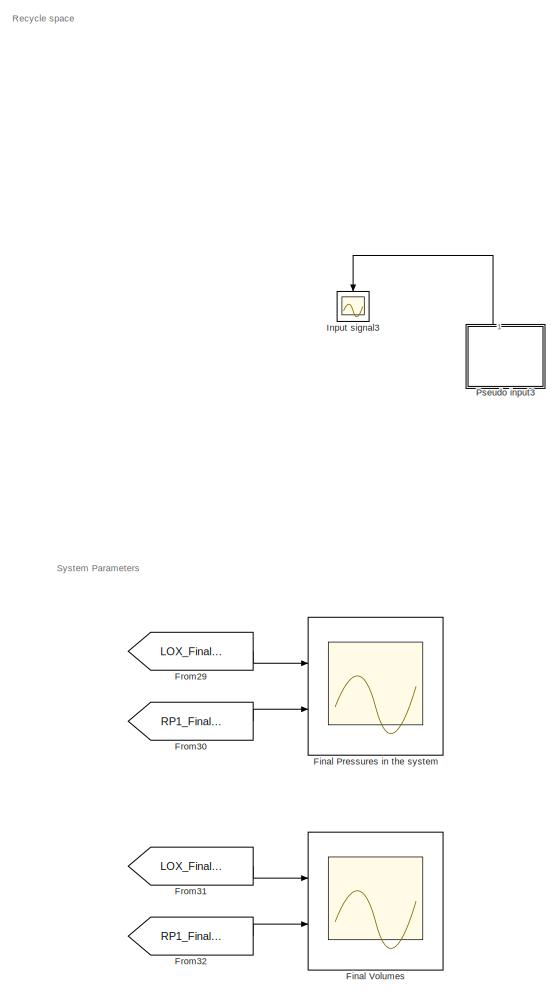
[diagram: root canvas - part 1/7, top right region]
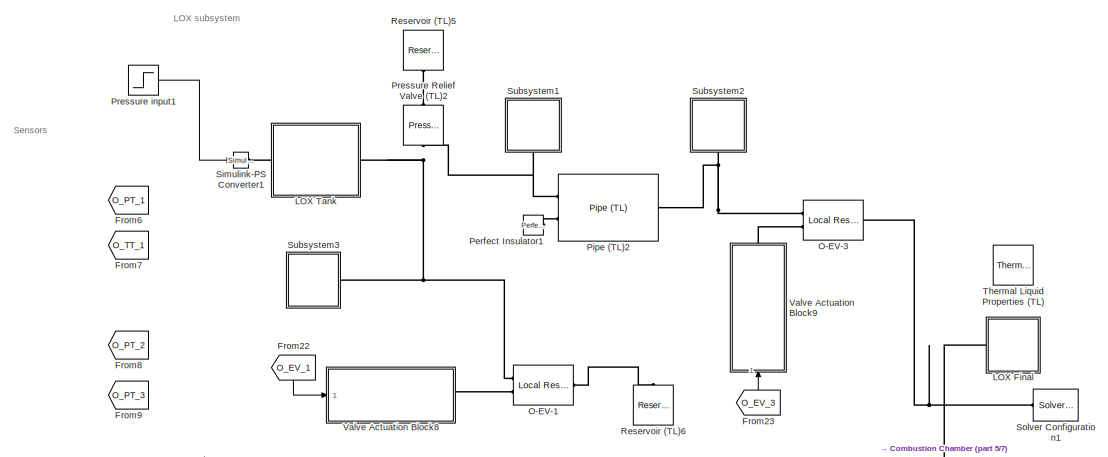
[diagram: root canvas - part 2/7, top right region]
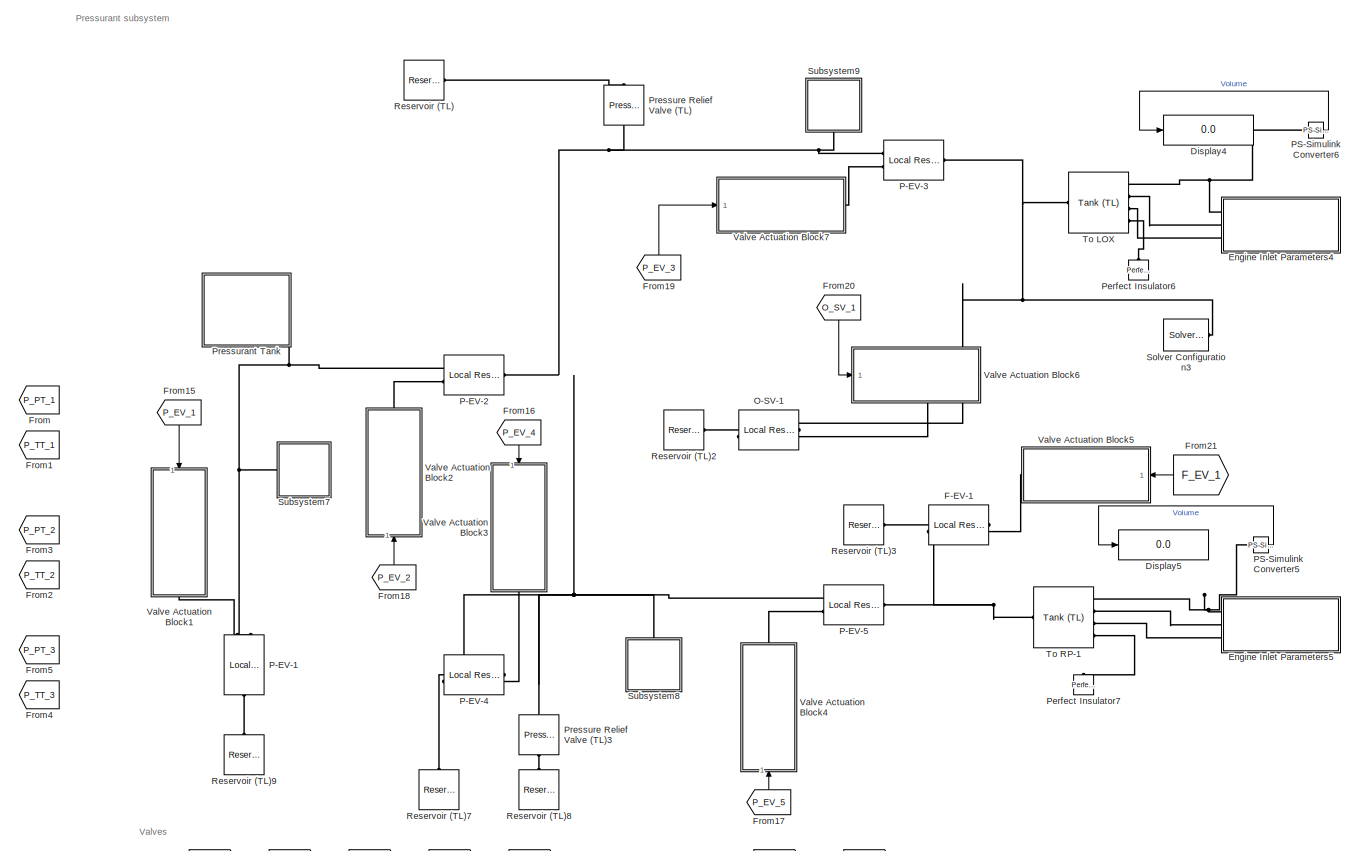
[diagram: root canvas - part 3/7, central region]
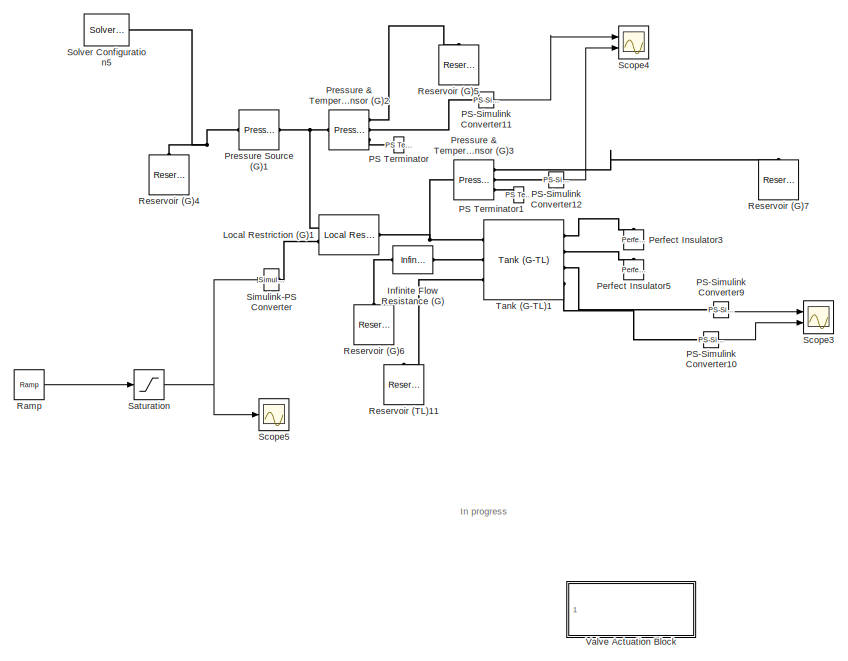
[diagram: root canvas - part 4/7, middle left region]
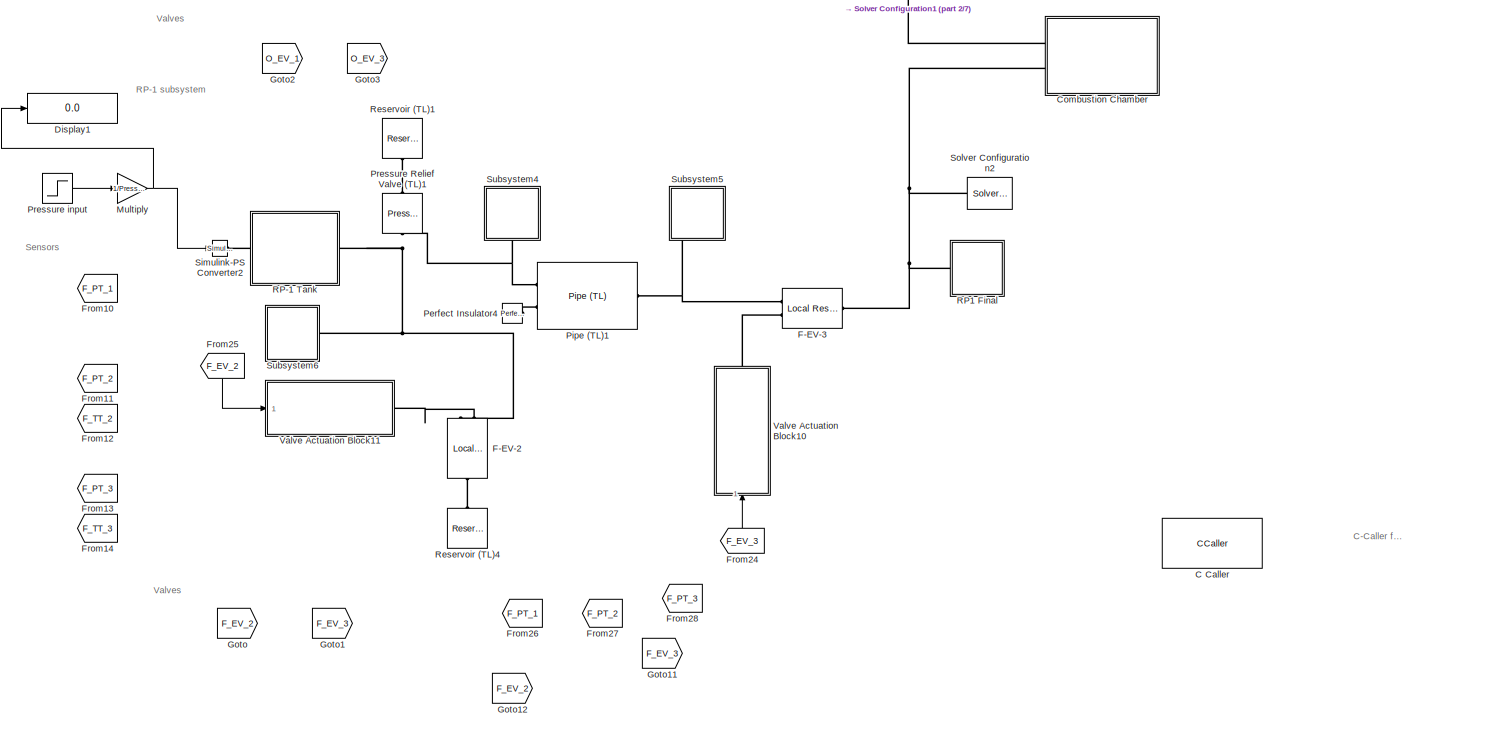
[diagram: root canvas - part 5/7, middle right region]
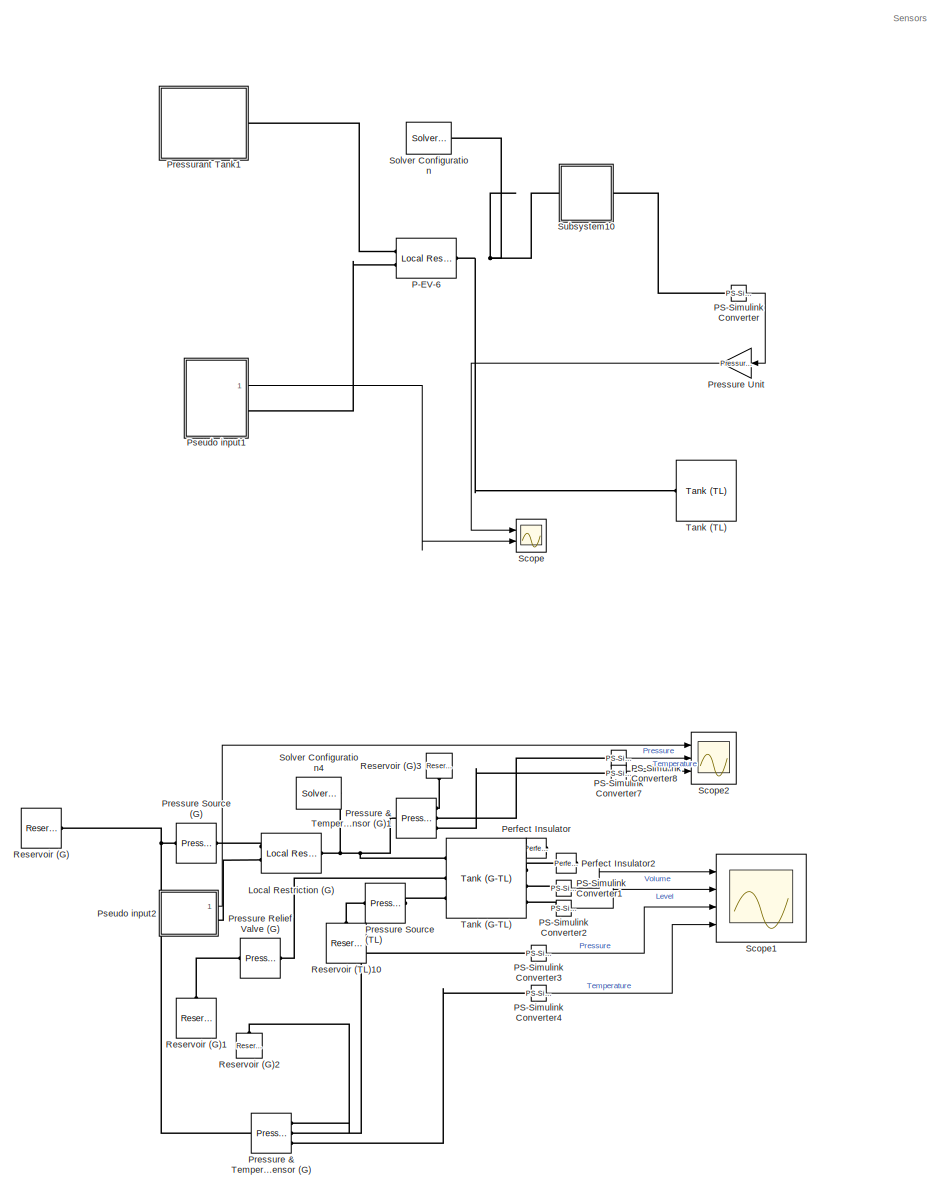
[diagram: root canvas - part 6/7, bottom left region]
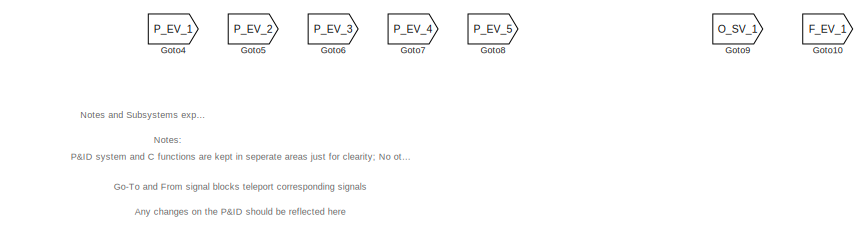
[diagram: root canvas - part 7/7, bottom center region]
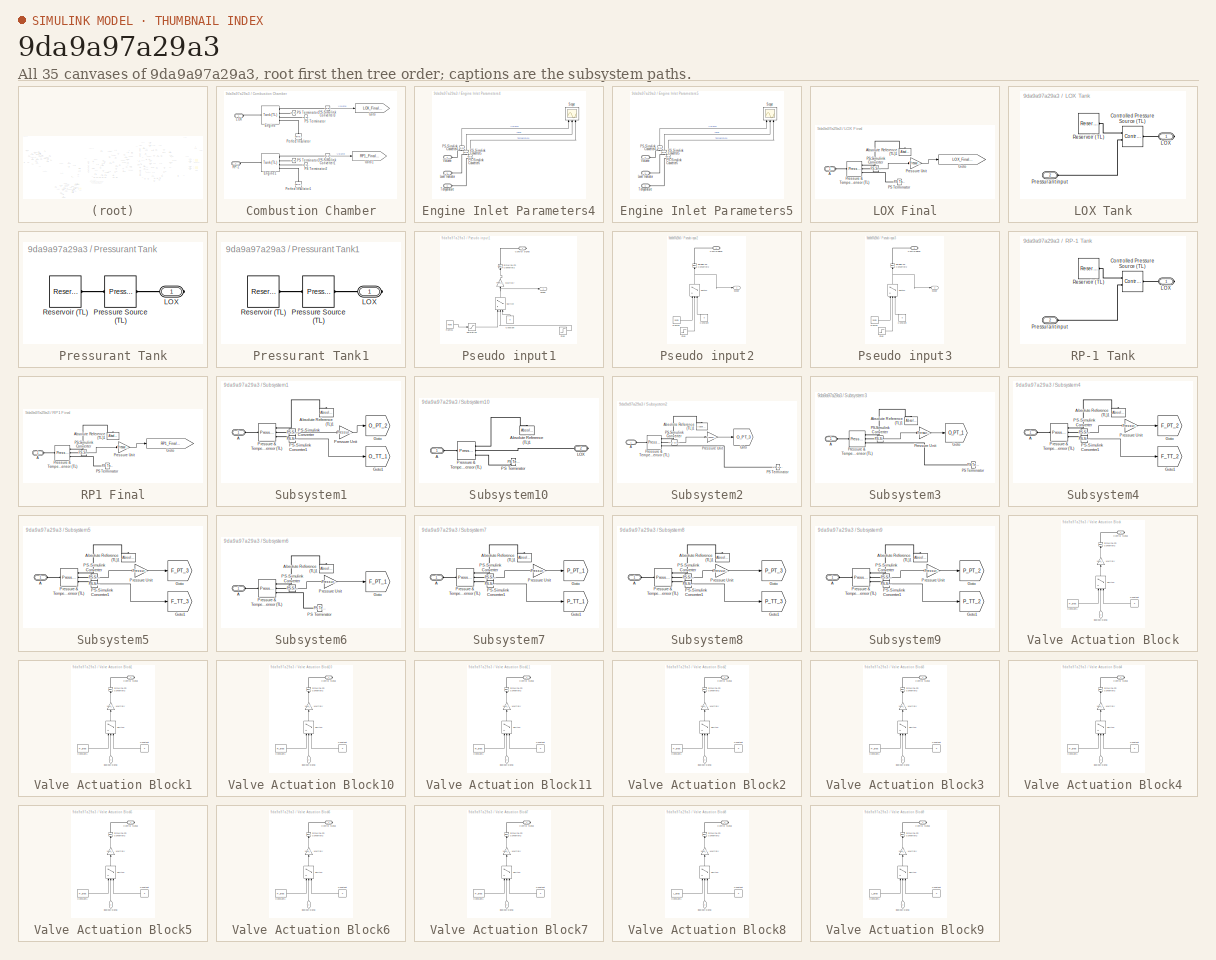
[diagram: thumbnail index - all 35 canvases of the model, root first then tree order]
MODEL slx_9da9a97a29a3
KIND model
CONFIG AbsTol = auto
CONFIG EnableMultiTasking = off
CONFIG FixedStep = auto
CONFIG MaxStep = auto
CONFIG MinStep = auto
CONFIG RelTol = 1e-3
CONFIG SampleTimeConstraint = Unconstrained
CONFIG Solver = VariableStepAuto
CONFIG SolverName = VariableStepAuto
CONFIG StartTime = 0.0
CONFIG StopTime = 50
BLOCK [CCaller] C Caller
  Commented = on
  FunctionName = init
  PortSpecificationStruct = %)30     .    , (   8    (     @         %    "     $    !     0         %  0 "0    $    _    07)G3F%M90  4&]R=$YA;64 4V-O<&4     26YD97@     5'EP90      4VEZ90      27-';&]B86P   X   !     !@    @    $          4    (     0    D    !         !     )    9FEL95]N86UE          X   !     !@    @    $          4    (     0    D    !         !     )    9FEL95]N86UE          X    X    !@    @    $      ...<+360ch>
  Ports = [0, 1]
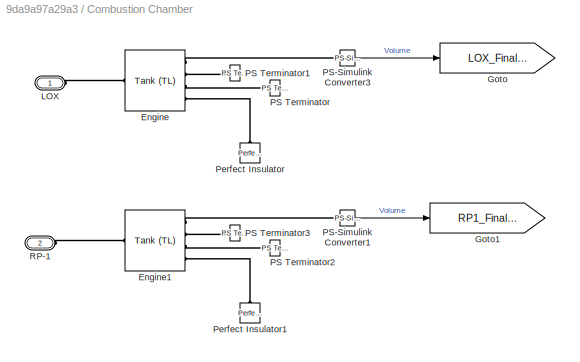
BLOCK [SubSystem] Combustion Chamber
  Commented = on
  Ports = [0, 0, 0, 0, 0, 2]
  RequestExecContextInheritance = off
BLOCK [Reference] Combustion Chamber/Engine  REF=SimscapeFluids_lib/Thermal Liquid/Tanks & Accumulators/Tank (TL)
  Ports = [0, 0, 0, 0, 0, 1, 4]
  SourceBlock = SimscapeFluids_lib/Thermal Liquid/Tanks & Accumulators/Tank (TL)
  SourceProductBaseCode = SH
  SourceProductName = Simscape Fluids
  SourceType = Tank (TL)
BLOCK [Reference] Combustion Chamber/Engine1  REF=SimscapeFluids_lib/Thermal Liquid/Tanks & Accumulators/Tank (TL)
  Ports = [0, 0, 0, 0, 0, 1, 4]
  SourceBlock = SimscapeFluids_lib/Thermal Liquid/Tanks & Accumulators/Tank (TL)
  SourceProductBaseCode = SH
  SourceProductName = Simscape Fluids
  SourceType = Tank (TL)
BLOCK [Goto] Combustion Chamber/Goto
  GotoTag = LOX_Final_Volume
BLOCK [Goto] Combustion Chamber/Goto1
  GotoTag = RP1_Final_Volume
BLOCK [PMIOPort] Combustion Chamber/LOX
  Side = Left
BLOCK [Reference] Combustion Chamber/PS Terminator  REF=fl_lib/Physical Signals/Sinks/PS Terminator
  Ports = [0, 0, 0, 0, 0, 1]
  SourceBlock = fl_lib/Physical Signals/Sinks/PS Terminator
  SourceProductBaseCode = SS
  SourceProductName = Simscape
  SourceType = PS Terminator
BLOCK [Reference] Combustion Chamber/PS Terminator1  REF=fl_lib/Physical Signals/Sinks/PS Terminator
  Ports = [0, 0, 0, 0, 0, 1]
  SourceBlock = fl_lib/Physical Signals/Sinks/PS Terminator
  SourceProductBaseCode = SS
  SourceProductName = Simscape
  SourceType = PS Terminator
BLOCK [Reference] Combustion Chamber/PS Terminator2  REF=fl_lib/Physical Signals/Sinks/PS Terminator
  Ports = [0, 0, 0, 0, 0, 1]
  SourceBlock = fl_lib/Physical Signals/Sinks/PS Terminator
  SourceProductBaseCode = SS
  SourceProductName = Simscape
  SourceType = PS Terminator
BLOCK [Reference] Combustion Chamber/PS Terminator3  REF=fl_lib/Physical Signals/Sinks/PS Terminator
  Ports = [0, 0, 0, 0, 0, 1]
  SourceBlock = fl_lib/Physical Signals/Sinks/PS Terminator
  SourceProductBaseCode = SS
  SourceProductName = Simscape
  SourceType = PS Terminator
BLOCK [Reference] Combustion Chamber/PS-Simulink Converter1  REF=nesl_utility/PS-Simulink
Converter
  Ports = [0, 1, 0, 0, 0, 1]
  SourceBlock = nesl_utility/PS-Simulink\nConverter
  SourceProductBaseCode = SS
  SourceProductName = Simscape
  SourceType = PS-Simulink\nConverter
BLOCK [Reference] Combustion Chamber/PS-Simulink Converter3  REF=nesl_utility/PS-Simulink
Converter
  Ports = [0, 1, 0, 0, 0, 1]
  SourceBlock = nesl_utility/PS-Simulink\nConverter
  SourceProductBaseCode = SS
  SourceProductName = Simscape
  SourceType = PS-Simulink\nConverter
BLOCK [Reference] Combustion Chamber/Perfect Insulator  REF=fl_lib/Thermal/Thermal Elements/Perfect Insulator
  Ports = [0, 0, 0, 0, 0, 1]
  SourceBlock = fl_lib/Thermal/Thermal Elements/Perfect Insulator
  SourceProductBaseCode = SS
  SourceProductName = Simscape
  SourceType = Perfect Insulator
BLOCK [Reference] Combustion Chamber/Perfect Insulator1  REF=fl_lib/Thermal/Thermal Elements/Perfect Insulator
  Ports = [0, 0, 0, 0, 0, 1]
  SourceBlock = fl_lib/Thermal/Thermal Elements/Perfect Insulator
  SourceProductBaseCode = SS
  SourceProductName = Simscape
  SourceType = Perfect Insulator
BLOCK [PMIOPort] Combustion Chamber/RP-1
  Port = 2
  Side = Left
BLOCK [Display] Display1
  Commented = on
  Decimation = 1
  Ports = [1]
BLOCK [Display] Display4
  Commented = on
  Decimation = 1
  Ports = [1]
BLOCK [Display] Display5
  Commented = on
  Decimation = 1
  Ports = [1]
BLOCK [SubSystem] Engine Inlet Parameters4
  Commented = on
  Ports = [0, 0, 0, 0, 0, 3]
  RequestExecContextInheritance = off
BLOCK [PMIOPort] Engine Inlet Parameters4/Level Indicator
  Port = 2
  Side = Left
BLOCK [Reference] Engine Inlet Parameters4/PS-Simulink Converter4  REF=nesl_utility/PS-Simulink
Converter
  Ports = [0, 1, 0, 0, 0, 1]
  SourceBlock = nesl_utility/PS-Simulink\nConverter
  SourceProductBaseCode = SS
  SourceProductName = Simscape
  SourceType = PS-Simulink\nConverter
BLOCK [Reference] Engine Inlet Parameters4/PS-Simulink Converter5  REF=nesl_utility/PS-Simulink
Converter
  Ports = [0, 1, 0, 0, 0, 1]
  SourceBlock = nesl_utility/PS-Simulink\nConverter
  SourceProductBaseCode = SS
  SourceProductName = Simscape
  SourceType = PS-Simulink\nConverter
BLOCK [Reference] Engine Inlet Parameters4/PS-Simulink Converter6  REF=nesl_utility/PS-Simulink
Converter
  Ports = [0, 1, 0, 0, 0, 1]
  SourceBlock = nesl_utility/PS-Simulink\nConverter
  SourceProductBaseCode = SS
  SourceProductName = Simscape
  SourceType = PS-Simulink\nConverter
BLOCK [Scope] Engine Inlet Parameters4/Scope
  Floating = off
  NumInputPorts = 3
  Ports = [3]
  ScopeSpecificationString = Simulink.scopes.TimeScopeBlockCfg('CurrentConfiguration', extmgr.ConfigurationSet(extmgr.Configuration('Core','General UI',true),extmgr.Configuration('Core','Source UI',true),extmgr.Configuration('Sources','WiredSimulink',true,'DataLoggingVariableName','ScopeData3'),extmgr.Configuration('Visuals','Time Domain',true,'SerializedDisplays',{struct('MinYLimReal','-31.03783','MaxYLimReal','329.33944','Y...<+1424ch>
BLOCK [PMIOPort] Engine Inlet Parameters4/Temperature
  Port = 3
  Side = Left
BLOCK [PMIOPort] Engine Inlet Parameters4/Volume
  Side = Left
BLOCK [SubSystem] Engine Inlet Parameters5
  Commented = on
  Ports = [0, 0, 0, 0, 0, 3]
  RequestExecContextInheritance = off
BLOCK [PMIOPort] Engine Inlet Parameters5/Level Indicator
  Port = 2
  Side = Left
BLOCK [Reference] Engine Inlet Parameters5/PS-Simulink Converter4  REF=nesl_utility/PS-Simulink
Converter
  Ports = [0, 1, 0, 0, 0, 1]
  SourceBlock = nesl_utility/PS-Simulink\nConverter
  SourceProductBaseCode = SS
  SourceProductName = Simscape
  SourceType = PS-Simulink\nConverter
BLOCK [Reference] Engine Inlet Parameters5/PS-Simulink Converter5  REF=nesl_utility/PS-Simulink
Converter
  Ports = [0, 1, 0, 0, 0, 1]
  SourceBlock = nesl_utility/PS-Simulink\nConverter
  SourceProductBaseCode = SS
  SourceProductName = Simscape
  SourceType = PS-Simulink\nConverter
BLOCK [Reference] Engine Inlet Parameters5/PS-Simulink Converter6  REF=nesl_utility/PS-Simulink
Converter
  Ports = [0, 1, 0, 0, 0, 1]
  SourceBlock = nesl_utility/PS-Simulink\nConverter
  SourceProductBaseCode = SS
  SourceProductName = Simscape
  SourceType = PS-Simulink\nConverter
BLOCK [Scope] Engine Inlet Parameters5/Scope
  Floating = off
  NumInputPorts = 3
  Ports = [3]
  ScopeSpecificationString = Simulink.scopes.TimeScopeBlockCfg('CurrentConfiguration', extmgr.ConfigurationSet(extmgr.Configuration('Core','General UI',true),extmgr.Configuration('Core','Source UI',true),extmgr.Configuration('Sources','WiredSimulink',true,'DataLoggingVariableName','ScopeData3'),extmgr.Configuration('Visuals','Time Domain',true,'SerializedDisplays',{struct('MinYLimReal','-31.03783','MaxYLimReal','329.33944','Y...<+1424ch>
BLOCK [PMIOPort] Engine Inlet Parameters5/Temperature
  Port = 3
  Side = Left
BLOCK [PMIOPort] Engine Inlet Parameters5/Volume
  Side = Left
BLOCK [Reference] F-EV-1  REF=fl_lib/Thermal Liquid/Elements/Local Restriction
(TL)
  Commented = on
  Ports = [0, 0, 0, 0, 0, 2, 1]
  SourceBlock = fl_lib/Thermal Liquid/Elements/Local Restriction\n(TL)
  SourceProductBaseCode = SS
  SourceProductName = Simscape
  SourceType = Local Restriction\n(TL)
BLOCK [Reference] F-EV-2  REF=fl_lib/Thermal Liquid/Elements/Local Restriction
(TL)
  Commented = on
  Ports = [0, 0, 0, 0, 0, 2, 1]
  SourceBlock = fl_lib/Thermal Liquid/Elements/Local Restriction\n(TL)
  SourceProductBaseCode = SS
  SourceProductName = Simscape
  SourceType = Local Restriction\n(TL)
BLOCK [Reference] F-EV-3  REF=fl_lib/Thermal Liquid/Elements/Local Restriction
(TL)
  Commented = on
  Ports = [0, 0, 0, 0, 0, 2, 1]
  SourceBlock = fl_lib/Thermal Liquid/Elements/Local Restriction\n(TL)
  SourceProductBaseCode = SS
  SourceProductName = Simscape
  SourceType = Local Restriction\n(TL)
BLOCK [Scope] Final Pressures in the system
  Commented = on
  Floating = off
  NumInputPorts = 2
  Ports = [2]
  ScopeSpecificationString = Simulink.scopes.TimeScopeBlockCfg('CurrentConfiguration', extmgr.ConfigurationSet(extmgr.Configuration('Core','General UI',true),extmgr.Configuration('Core','Source UI',true),extmgr.Configuration('Sources','WiredSimulink',true,'DataLoggingVariableName','ScopeData2'),extmgr.Configuration('Visuals','Time Domain',true),extmgr.Configuration('Tools','Plot Navigation',true),extmgr.Configuration('Tools',...<+40ch>
BLOCK [Scope] Final Volumes
  Commented = on
  Floating = off
  NumInputPorts = 2
  Ports = [2]
  ScopeSpecificationString = Simulink.scopes.TimeScopeBlockCfg('CurrentConfiguration', extmgr.ConfigurationSet(extmgr.Configuration('Core','General UI',true),extmgr.Configuration('Core','Source UI',true),extmgr.Configuration('Sources','WiredSimulink',true,'DataLoggingVariableName','ScopeData3'),extmgr.Configuration('Visuals','Time Domain',true),extmgr.Configuration('Tools','Plot Navigation',true),extmgr.Configuration('Tools',...<+40ch>
BLOCK [From] From
  Commented = on
  GotoTag = P_PT_1
  TagVisibility = global
BLOCK [From] From1
  Commented = on
  GotoTag = P_TT_1
  TagVisibility = global
BLOCK [From] From10
  Commented = on
  GotoTag = F_PT_1
  TagVisibility = global
BLOCK [From] From11
  Commented = on
  GotoTag = F_PT_2
  TagVisibility = global
BLOCK [From] From12
  Commented = on
  GotoTag = F_TT_2
  TagVisibility = global
BLOCK [From] From13
  Commented = on
  GotoTag = F_PT_3
  TagVisibility = global
BLOCK [From] From14
  Commented = on
  GotoTag = F_TT_3
  TagVisibility = global
BLOCK [From] From15
  Commented = on
  GotoTag = P_EV_1
  TagVisibility = global
BLOCK [From] From16
  Commented = on
  GotoTag = P_EV_4
  TagVisibility = global
BLOCK [From] From17
  Commented = on
  GotoTag = P_EV_5
  TagVisibility = global
BLOCK [From] From18
  Commented = on
  GotoTag = P_EV_2
  TagVisibility = global
BLOCK [From] From19
  Commented = on
  GotoTag = P_EV_3
  TagVisibility = global
BLOCK [From] From2
  Commented = on
  GotoTag = P_TT_2
  TagVisibility = global
BLOCK [From] From20
  Commented = on
  GotoTag = O_SV_1
  TagVisibility = global
BLOCK [From] From21
  Commented = on
  GotoTag = F_EV_1
  TagVisibility = global
BLOCK [From] From22
  Commented = on
  GotoTag = O_EV_1
  TagVisibility = global
BLOCK [From] From23
  Commented = on
  GotoTag = O_EV_3
  TagVisibility = global
BLOCK [From] From24
  Commented = on
  GotoTag = F_EV_3
  TagVisibility = global
BLOCK [From] From25
  Commented = on
  GotoTag = F_EV_2
  TagVisibility = global
BLOCK [From] From26
  Commented = on
  GotoTag = F_PT_1
  TagVisibility = global
BLOCK [From] From27
  Commented = on
  GotoTag = F_PT_2
  TagVisibility = global
BLOCK [From] From28
  Commented = on
  GotoTag = F_PT_3
  TagVisibility = global
BLOCK [From] From29
  Commented = on
  GotoTag = LOX_Final_Pressure
BLOCK [From] From3
  Commented = on
  GotoTag = P_PT_2
  TagVisibility = global
BLOCK [From] From30
  Commented = on
  GotoTag = RP1_Final_Pressure
BLOCK [From] From31
  Commented = on
  GotoTag = LOX_Final_Volume
BLOCK [From] From32
  Commented = on
  GotoTag = RP1_Final_Volume
BLOCK [From] From4
  Commented = on
  GotoTag = P_TT_3
  TagVisibility = global
BLOCK [From] From5
  Commented = on
  GotoTag = P_PT_3
  TagVisibility = global
BLOCK [From] From6
  Commented = on
  GotoTag = O_PT_1
  TagVisibility = global
BLOCK [From] From7
  Commented = on
  GotoTag = O_TT_1
  TagVisibility = global
BLOCK [From] From8
  Commented = on
  GotoTag = O_PT_2
  TagVisibility = global
BLOCK [From] From9
  Commented = on
  GotoTag = O_PT_3
  TagVisibility = global
BLOCK [Goto] Goto
  Commented = on
  GotoTag = F_EV_2
  TagVisibility = global
BLOCK [Goto] Goto1
  Commented = on
  GotoTag = F_EV_3
  TagVisibility = global
BLOCK [Goto] Goto10
  Commented = on
  GotoTag = F_EV_1
  TagVisibility = global
BLOCK [Goto] Goto11
  Commented = on
  GotoTag = F_EV_3
  TagVisibility = global
BLOCK [Goto] Goto12
  Commented = on
  GotoTag = F_EV_2
  TagVisibility = global
BLOCK [Goto] Goto2
  Commented = on
  GotoTag = O_EV_1
  TagVisibility = global
BLOCK [Goto] Goto3
  Commented = on
  GotoTag = O_EV_3
  TagVisibility = global
BLOCK [Goto] Goto4
  Commented = on
  GotoTag = P_EV_1
  TagVisibility = global
BLOCK [Goto] Goto5
  Commented = on
  GotoTag = P_EV_2
  TagVisibility = global
BLOCK [Goto] Goto6
  Commented = on
  GotoTag = P_EV_3
  TagVisibility = global
BLOCK [Goto] Goto7
  Commented = on
  GotoTag = P_EV_4
  TagVisibility = global
BLOCK [Goto] Goto8
  Commented = on
  GotoTag = P_EV_5
  TagVisibility = global
BLOCK [Goto] Goto9
  Commented = on
  GotoTag = O_SV_1
  TagVisibility = global
BLOCK [Reference] Infinite Flow Resistance (G)  REF=fl_lib/Gas/Elements/Infinite Flow
Resistance (G)
  Ports = [0, 0, 0, 0, 0, 1, 1]
  SourceBlock = fl_lib/Gas/Elements/Infinite Flow\nResistance (G)
  SourceProductBaseCode = SS
  SourceProductName = Simscape
  SourceType = Infinite Flow\nResistance (G)
BLOCK [Scope] Input signal3
  Commented = on
  Floating = off
  NumInputPorts = 1
  Ports = [1]
  ScopeSpecificationString = Simulink.scopes.TimeScopeBlockCfg('CurrentConfiguration', extmgr.ConfigurationSet(extmgr.Configuration('Core','General UI',true),extmgr.Configuration('Core','Source UI',true),extmgr.Configuration('Sources','WiredSimulink',true,'DataLoggingVariableName','ScopeData2'),extmgr.Configuration('Visuals','Time Domain',true,'SerializedDisplays',{struct('MinYLimReal','-0.01125','MaxYLimReal','0.10125','YLab...<+1397ch>
BLOCK [SubSystem] LOX Final
  Commented = on
  Ports = [0, 0, 0, 0, 0, 1]
  RequestExecContextInheritance = off
BLOCK [PMIOPort] LOX Final/A
  Side = Left
BLOCK [Reference] LOX Final/Absolute Reference (TL)1  REF=fl_lib/Thermal Liquid/Elements/Absolute Reference
(TL)
  Ports = [0, 0, 0, 0, 0, 1]
  SourceBlock = fl_lib/Thermal Liquid/Elements/Absolute Reference\n(TL)
  SourceProductBaseCode = SS
  SourceProductName = Simscape
  SourceType = Absolute Reference\n(TL)
BLOCK [Goto] LOX Final/Goto
  GotoTag = LOX_Final_Pressure
  TagVisibility = global
BLOCK [Reference] LOX Final/PS Terminator  REF=fl_lib/Physical Signals/Sinks/PS Terminator
  Ports = [0, 0, 0, 0, 0, 1]
  SourceBlock = fl_lib/Physical Signals/Sinks/PS Terminator
  SourceProductBaseCode = SS
  SourceProductName = Simscape
  SourceType = PS Terminator
BLOCK [Reference] LOX Final/PS-Simulink Converter  REF=nesl_utility/PS-Simulink
Converter
  Ports = [0, 1, 0, 0, 0, 1]
  SourceBlock = nesl_utility/PS-Simulink\nConverter
  SourceProductBaseCode = SS
  SourceProductName = Simscape
  SourceType = PS-Simulink\nConverter
BLOCK [Reference] LOX Final/Pressure & Temperature Sensor (TL)  REF=fl_lib/Thermal Liquid/Sensors/Pressure &
Temperature Sensor
(TL)
  Ports = [0, 0, 0, 0, 0, 1, 3]
  SourceBlock = fl_lib/Thermal Liquid/Sensors/Pressure &\nTemperature Sensor\n(TL)
  SourceProductBaseCode = SS
  SourceProductName = Simscape
  SourceType = Pressure &\nTemperature Sensor\n(TL)
BLOCK [Gain] LOX Final/Pressure Unit
  Gain = PressureUnit
  OutDataTypeStr = Inherit: Inherit via internal rule
  ParamDataTypeStr = Inherit: Inherit via internal rule
  SaturateOnIntegerOverflow = off
BLOCK [SubSystem] LOX Tank
  Commented = on
  Ports = [0, 0, 0, 0, 0, 1, 1]
  RequestExecContextInheritance = off
BLOCK [Reference] LOX Tank/Controlled Pressure Source (TL)  REF=fl_lib/Thermal Liquid/Sources/Controlled Pressure
Source (TL)
  Ports = [0, 0, 0, 0, 0, 2, 1]
  SourceBlock = fl_lib/Thermal Liquid/Sources/Controlled Pressure\nSource (TL)
  SourceProductBaseCode = SS
  SourceProductName = Simscape
  SourceType = Controlled Pressure\nSource (TL)
BLOCK [PMIOPort] LOX Tank/LOX
  Side = Right
BLOCK [PMIOPort] LOX Tank/Pressurant input
  Port = 2
  Side = Left
BLOCK [Reference] LOX Tank/Reservoir (TL)  REF=fl_lib/Thermal Liquid/Elements/Reservoir (TL)
  Ports = [0, 0, 0, 0, 0, 1]
  SourceBlock = fl_lib/Thermal Liquid/Elements/Reservoir (TL)
  SourceProductBaseCode = SS
  SourceProductName = Simscape
  SourceType = Reservoir (TL)
BLOCK [Reference] Local Restriction (G)  REF=fl_lib/Gas/Elements/Local Restriction
(G)
  Commented = on
  Ports = [0, 0, 0, 0, 0, 2, 1]
  SourceBlock = fl_lib/Gas/Elements/Local Restriction\n(G)
  SourceProductBaseCode = SS
  SourceProductName = Simscape
  SourceType = Local Restriction\n(G)
BLOCK [Reference] Local Restriction (G)1  REF=fl_lib/Gas/Elements/Local Restriction
(G)
  Ports = [0, 0, 0, 0, 0, 2, 1]
  SourceBlock = fl_lib/Gas/Elements/Local Restriction\n(G)
  SourceProductBaseCode = SS
  SourceProductName = Simscape
  SourceType = Local Restriction\n(G)
BLOCK [Gain] Multiply
  Commented = on
  Gain = 1/PressureUnit
  OutDataTypeStr = Inherit: Inherit via internal rule
  ParamDataTypeStr = Inherit: Inherit via internal rule
  SaturateOnIntegerOverflow = off
BLOCK [Reference] O-EV-1  REF=fl_lib/Thermal Liquid/Elements/Local Restriction
(TL)
  Commented = on
  Ports = [0, 0, 0, 0, 0, 2, 1]
  SourceBlock = fl_lib/Thermal Liquid/Elements/Local Restriction\n(TL)
  SourceProductBaseCode = SS
  SourceProductName = Simscape
  SourceType = Local Restriction\n(TL)
BLOCK [Reference] O-EV-3  REF=fl_lib/Thermal Liquid/Elements/Local Restriction
(TL)
  Commented = on
  Ports = [0, 0, 0, 0, 0, 2, 1]
  SourceBlock = fl_lib/Thermal Liquid/Elements/Local Restriction\n(TL)
  SourceProductBaseCode = SS
  SourceProductName = Simscape
  SourceType = Local Restriction\n(TL)
BLOCK [Reference] O-SV-1  REF=fl_lib/Thermal Liquid/Elements/Local Restriction
(TL)
  Commented = on
  Ports = [0, 0, 0, 0, 0, 2, 1]
  SourceBlock = fl_lib/Thermal Liquid/Elements/Local Restriction\n(TL)
  SourceProductBaseCode = SS
  SourceProductName = Simscape
  SourceType = Local Restriction\n(TL)
BLOCK [Reference] P-EV-1  REF=fl_lib/Thermal Liquid/Elements/Local Restriction
(TL)
  Commented = on
  Ports = [0, 0, 0, 0, 0, 2, 1]
  SourceBlock = fl_lib/Thermal Liquid/Elements/Local Restriction\n(TL)
  SourceProductBaseCode = SS
  SourceProductName = Simscape
  SourceType = Local Restriction\n(TL)
BLOCK [Reference] P-EV-2  REF=fl_lib/Thermal Liquid/Elements/Local Restriction
(TL)
  Commented = on
  Ports = [0, 0, 0, 0, 0, 2, 1]
  SourceBlock = fl_lib/Thermal Liquid/Elements/Local Restriction\n(TL)
  SourceProductBaseCode = SS
  SourceProductName = Simscape
  SourceType = Local Restriction\n(TL)
BLOCK [Reference] P-EV-3  REF=fl_lib/Thermal Liquid/Elements/Local Restriction
(TL)
  Commented = on
  Ports = [0, 0, 0, 0, 0, 2, 1]
  SourceBlock = fl_lib/Thermal Liquid/Elements/Local Restriction\n(TL)
  SourceProductBaseCode = SS
  SourceProductName = Simscape
  SourceType = Local Restriction\n(TL)
BLOCK [Reference] P-EV-4  REF=fl_lib/Thermal Liquid/Elements/Local Restriction
(TL)
  Commented = on
  Ports = [0, 0, 0, 0, 0, 2, 1]
  SourceBlock = fl_lib/Thermal Liquid/Elements/Local Restriction\n(TL)
  SourceProductBaseCode = SS
  SourceProductName = Simscape
  SourceType = Local Restriction\n(TL)
BLOCK [Reference] P-EV-5  REF=fl_lib/Thermal Liquid/Elements/Local Restriction
(TL)
  Commented = on
  Ports = [0, 0, 0, 0, 0, 2, 1]
  SourceBlock = fl_lib/Thermal Liquid/Elements/Local Restriction\n(TL)
  SourceProductBaseCode = SS
  SourceProductName = Simscape
  SourceType = Local Restriction\n(TL)
BLOCK [Reference] P-EV-6  REF=fl_lib/Thermal Liquid/Elements/Local Restriction
(TL)
  Commented = on
  Ports = [0, 0, 0, 0, 0, 2, 1]
  SourceBlock = fl_lib/Thermal Liquid/Elements/Local Restriction\n(TL)
  SourceProductBaseCode = SS
  SourceProductName = Simscape
  SourceType = Local Restriction\n(TL)
BLOCK [Reference] PS Terminator  REF=fl_lib/Physical Signals/Sinks/PS Terminator
  Ports = [0, 0, 0, 0, 0, 1]
  SourceBlock = fl_lib/Physical Signals/Sinks/PS Terminator
  SourceProductBaseCode = SS
  SourceProductName = Simscape
  SourceType = PS Terminator
BLOCK [Reference] PS Terminator1  REF=fl_lib/Physical Signals/Sinks/PS Terminator
  Ports = [0, 0, 0, 0, 0, 1]
  SourceBlock = fl_lib/Physical Signals/Sinks/PS Terminator
  SourceProductBaseCode = SS
  SourceProductName = Simscape
  SourceType = PS Terminator
BLOCK [Reference] PS-Simulink Converter  REF=nesl_utility/PS-Simulink
Converter
  Commented = on
  Ports = [0, 1, 0, 0, 0, 1]
  SourceBlock = nesl_utility/PS-Simulink\nConverter
  SourceProductBaseCode = SS
  SourceProductName = Simscape
  SourceType = PS-Simulink\nConverter
BLOCK [Reference] PS-Simulink Converter1  REF=nesl_utility/PS-Simulink
Converter
  Commented = on
  Ports = [0, 1, 0, 0, 0, 1]
  SourceBlock = nesl_utility/PS-Simulink\nConverter
  SourceProductBaseCode = SS
  SourceProductName = Simscape
  SourceType = PS-Simulink\nConverter
BLOCK [Reference] PS-Simulink Converter10  REF=nesl_utility/PS-Simulink
Converter
  Ports = [0, 1, 0, 0, 0, 1]
  SourceBlock = nesl_utility/PS-Simulink\nConverter
  SourceProductBaseCode = SS
  SourceProductName = Simscape
  SourceType = PS-Simulink\nConverter
BLOCK [Reference] PS-Simulink Converter11  REF=nesl_utility/PS-Simulink
Converter
  Ports = [0, 1, 0, 0, 0, 1]
  SourceBlock = nesl_utility/PS-Simulink\nConverter
  SourceProductBaseCode = SS
  SourceProductName = Simscape
  SourceType = PS-Simulink\nConverter
BLOCK [Reference] PS-Simulink Converter12  REF=nesl_utility/PS-Simulink
Converter
  Ports = [0, 1, 0, 0, 0, 1]
  SourceBlock = nesl_utility/PS-Simulink\nConverter
  SourceProductBaseCode = SS
  SourceProductName = Simscape
  SourceType = PS-Simulink\nConverter
BLOCK [Reference] PS-Simulink Converter2  REF=nesl_utility/PS-Simulink
Converter
  Commented = on
  Ports = [0, 1, 0, 0, 0, 1]
  SourceBlock = nesl_utility/PS-Simulink\nConverter
  SourceProductBaseCode = SS
  SourceProductName = Simscape
  SourceType = PS-Simulink\nConverter
BLOCK [Reference] PS-Simulink Converter3  REF=nesl_utility/PS-Simulink
Converter
  Commented = on
  Ports = [0, 1, 0, 0, 0, 1]
  SourceBlock = nesl_utility/PS-Simulink\nConverter
  SourceProductBaseCode = SS
  SourceProductName = Simscape
  SourceType = PS-Simulink\nConverter
BLOCK [Reference] PS-Simulink Converter4  REF=nesl_utility/PS-Simulink
Converter
  Commented = on
  Ports = [0, 1, 0, 0, 0, 1]
  SourceBlock = nesl_utility/PS-Simulink\nConverter
  SourceProductBaseCode = SS
  SourceProductName = Simscape
  SourceType = PS-Simulink\nConverter
BLOCK [Reference] PS-Simulink Converter5  REF=nesl_utility/PS-Simulink
Converter
  Commented = on
  Ports = [0, 1, 0, 0, 0, 1]
  SourceBlock = nesl_utility/PS-Simulink\nConverter
  SourceProductBaseCode = SS
  SourceProductName = Simscape
  SourceType = PS-Simulink\nConverter
BLOCK [Reference] PS-Simulink Converter6  REF=nesl_utility/PS-Simulink
Converter
  Commented = on
  Ports = [0, 1, 0, 0, 0, 1]
  SourceBlock = nesl_utility/PS-Simulink\nConverter
  SourceProductBaseCode = SS
  SourceProductName = Simscape
  SourceType = PS-Simulink\nConverter
BLOCK [Reference] PS-Simulink Converter7  REF=nesl_utility/PS-Simulink
Converter
  Commented = on
  Ports = [0, 1, 0, 0, 0, 1]
  SourceBlock = nesl_utility/PS-Simulink\nConverter
  SourceProductBaseCode = SS
  SourceProductName = Simscape
  SourceType = PS-Simulink\nConverter
BLOCK [Reference] PS-Simulink Converter8  REF=nesl_utility/PS-Simulink
Converter
  Commented = on
  Ports = [0, 1, 0, 0, 0, 1]
  SourceBlock = nesl_utility/PS-Simulink\nConverter
  SourceProductBaseCode = SS
  SourceProductName = Simscape
  SourceType = PS-Simulink\nConverter
BLOCK [Reference] PS-Simulink Converter9  REF=nesl_utility/PS-Simulink
Converter
  Ports = [0, 1, 0, 0, 0, 1]
  SourceBlock = nesl_utility/PS-Simulink\nConverter
  SourceProductBaseCode = SS
  SourceProductName = Simscape
  SourceType = PS-Simulink\nConverter
BLOCK [Reference] Perfect Insulator  REF=fl_lib/Thermal/Thermal Elements/Perfect Insulator
  Commented = on
  Ports = [0, 0, 0, 0, 0, 1]
  SourceBlock = fl_lib/Thermal/Thermal Elements/Perfect Insulator
  SourceProductBaseCode = SS
  SourceProductName = Simscape
  SourceType = Perfect Insulator
BLOCK [Reference] Perfect Insulator1  REF=fl_lib/Thermal/Thermal Elements/Perfect Insulator
  Commented = on
  Ports = [0, 0, 0, 0, 0, 1]
  SourceBlock = fl_lib/Thermal/Thermal Elements/Perfect Insulator
  SourceProductBaseCode = SS
  SourceProductName = Simscape
  SourceType = Perfect Insulator
BLOCK [Reference] Perfect Insulator2  REF=fl_lib/Thermal/Thermal Elements/Perfect Insulator
  Commented = on
  Ports = [0, 0, 0, 0, 0, 1]
  SourceBlock = fl_lib/Thermal/Thermal Elements/Perfect Insulator
  SourceProductBaseCode = SS
  SourceProductName = Simscape
  SourceType = Perfect Insulator
BLOCK [Reference] Perfect Insulator3  REF=fl_lib/Thermal/Thermal Elements/Perfect Insulator
  Ports = [0, 0, 0, 0, 0, 1]
  SourceBlock = fl_lib/Thermal/Thermal Elements/Perfect Insulator
  SourceProductBaseCode = SS
  SourceProductName = Simscape
  SourceType = Perfect Insulator
BLOCK [Reference] Perfect Insulator4  REF=fl_lib/Thermal/Thermal Elements/Perfect Insulator
  Commented = on
  Ports = [0, 0, 0, 0, 0, 1]
  SourceBlock = fl_lib/Thermal/Thermal Elements/Perfect Insulator
  SourceProductBaseCode = SS
  SourceProductName = Simscape
  SourceType = Perfect Insulator
BLOCK [Reference] Perfect Insulator5  REF=fl_lib/Thermal/Thermal Elements/Perfect Insulator
  Ports = [0, 0, 0, 0, 0, 1]
  SourceBlock = fl_lib/Thermal/Thermal Elements/Perfect Insulator
  SourceProductBaseCode = SS
  SourceProductName = Simscape
  SourceType = Perfect Insulator
BLOCK [Reference] Perfect Insulator6  REF=fl_lib/Thermal/Thermal Elements/Perfect Insulator
  Commented = on
  Ports = [0, 0, 0, 0, 0, 1]
  SourceBlock = fl_lib/Thermal/Thermal Elements/Perfect Insulator
  SourceProductBaseCode = SS
  SourceProductName = Simscape
  SourceType = Perfect Insulator
BLOCK [Reference] Perfect Insulator7  REF=fl_lib/Thermal/Thermal Elements/Perfect Insulator
  Commented = on
  Ports = [0, 0, 0, 0, 0, 1]
  SourceBlock = fl_lib/Thermal/Thermal Elements/Perfect Insulator
  SourceProductBaseCode = SS
  SourceProductName = Simscape
  SourceType = Perfect Insulator
BLOCK [Reference] Pipe (TL)1  REF=SimscapeFluids_lib/Thermal Liquid/Pipes & Fittings/Pipe (TL)
  Commented = on
  Ports = [0, 0, 0, 0, 0, 2, 1]
  SourceBlock = SimscapeFluids_lib/Thermal Liquid/Pipes & Fittings/Pipe (TL)
  SourceProductBaseCode = SH
  SourceProductName = Simscape Fluids
  SourceType = Pipe (TL)
BLOCK [Reference] Pipe (TL)2  REF=SimscapeFluids_lib/Thermal Liquid/Pipes & Fittings/Pipe (TL)
  Commented = on
  Ports = [0, 0, 0, 0, 0, 2, 1]
  SourceBlock = SimscapeFluids_lib/Thermal Liquid/Pipes & Fittings/Pipe (TL)
  SourceProductBaseCode = SH
  SourceProductName = Simscape Fluids
  SourceType = Pipe (TL)
BLOCK [SubSystem] Pressurant Tank
  Commented = on
  Ports = [0, 0, 0, 0, 0, 0, 1]
  RequestExecContextInheritance = off
BLOCK [PMIOPort] Pressurant Tank/LOX
  Side = Right
BLOCK [Reference] Pressurant Tank/Pressure Source (TL)  REF=fl_lib/Thermal Liquid/Sources/Pressure Source (TL)
  Ports = [0, 0, 0, 0, 0, 1, 1]
  SourceBlock = fl_lib/Thermal Liquid/Sources/Pressure Source (TL)
  SourceProductBaseCode = SS
  SourceProductName = Simscape
  SourceType = Pressure Source (TL)
BLOCK [Reference] Pressurant Tank/Reservoir (TL)  REF=fl_lib/Thermal Liquid/Elements/Reservoir (TL)
  Ports = [0, 0, 0, 0, 0, 1]
  SourceBlock = fl_lib/Thermal Liquid/Elements/Reservoir (TL)
  SourceProductBaseCode = SS
  SourceProductName = Simscape
  SourceType = Reservoir (TL)
BLOCK [SubSystem] Pressurant Tank1
  Commented = on
  Ports = [0, 0, 0, 0, 0, 0, 1]
  RequestExecContextInheritance = off
BLOCK [PMIOPort] Pressurant Tank1/LOX
  Side = Right
BLOCK [Reference] Pressurant Tank1/Pressure Source (TL)  REF=fl_lib/Thermal Liquid/Sources/Pressure Source (TL)
  Ports = [0, 0, 0, 0, 0, 1, 1]
  SourceBlock = fl_lib/Thermal Liquid/Sources/Pressure Source (TL)
  SourceProductBaseCode = SS
  SourceProductName = Simscape
  SourceType = Pressure Source (TL)
BLOCK [Reference] Pressurant Tank1/Reservoir (TL)  REF=fl_lib/Thermal Liquid/Elements/Reservoir (TL)
  Ports = [0, 0, 0, 0, 0, 1]
  SourceBlock = fl_lib/Thermal Liquid/Elements/Reservoir (TL)
  SourceProductBaseCode = SS
  SourceProductName = Simscape
  SourceType = Reservoir (TL)
BLOCK [Reference] Pressure & Temperature Sensor (G)  REF=fl_lib/Gas/Sensors/Pressure &
Temperature Sensor
(G)
  Commented = on
  Ports = [0, 0, 0, 0, 0, 1, 3]
  SourceBlock = fl_lib/Gas/Sensors/Pressure &\nTemperature Sensor\n(G)
  SourceProductBaseCode = SS
  SourceProductName = Simscape
  SourceType = Pressure &\nTemperature Sensor\n(G)
BLOCK [Reference] Pressure & Temperature Sensor (G)1  REF=fl_lib/Gas/Sensors/Pressure &
Temperature Sensor
(G)
  Commented = on
  Ports = [0, 0, 0, 0, 0, 1, 3]
  SourceBlock = fl_lib/Gas/Sensors/Pressure &\nTemperature Sensor\n(G)
  SourceProductBaseCode = SS
  SourceProductName = Simscape
  SourceType = Pressure &\nTemperature Sensor\n(G)
BLOCK [Reference] Pressure & Temperature Sensor (G)2  REF=fl_lib/Gas/Sensors/Pressure &
Temperature Sensor
(G)
  Ports = [0, 0, 0, 0, 0, 1, 3]
  SourceBlock = fl_lib/Gas/Sensors/Pressure &\nTemperature Sensor\n(G)
  SourceProductBaseCode = SS
  SourceProductName = Simscape
  SourceType = Pressure &\nTemperature Sensor\n(G)
BLOCK [Reference] Pressure & Temperature Sensor (G)3  REF=fl_lib/Gas/Sensors/Pressure &
Temperature Sensor
(G)
  Ports = [0, 0, 0, 0, 0, 1, 3]
  SourceBlock = fl_lib/Gas/Sensors/Pressure &\nTemperature Sensor\n(G)
  SourceProductBaseCode = SS
  SourceProductName = Simscape
  SourceType = Pressure &\nTemperature Sensor\n(G)
BLOCK [Reference] Pressure Relief Valve (G)  REF=SimscapeFluids_lib/Gas/Valves & Orifices/Pressure Control
Valves/Pressure Relief
Valve (G)
  Commented = on
  Ports = [0, 0, 0, 0, 0, 1, 1]
  SourceBlock = SimscapeFluids_lib/Gas/Valves & Orifices/Pressure Control\nValves/Pressure Relief\nValve (G)
  SourceProductBaseCode = SH
  SourceProductName = Simscape Fluids
  SourceType = Pressure Relief\nValve (G)
BLOCK [Reference] Pressure Relief Valve (TL)  REF=SimscapeFluids_lib/Thermal Liquid/Valves & Orifices/Pressure Control
Valves/Pressure Relief
Valve (TL)
  Commented = on
  Ports = [0, 0, 0, 0, 0, 1, 1]
  SourceBlock = SimscapeFluids_lib/Thermal Liquid/Valves & Orifices/Pressure Control\nValves/Pressure Relief\nValve (TL)
  SourceProductBaseCode = SH
  SourceProductName = Simscape Fluids
  SourceType = Pressure Relief\nValve (TL)
BLOCK [Reference] Pressure Relief Valve (TL)1  REF=SimscapeFluids_lib/Thermal Liquid/Valves & Orifices/Pressure Control
Valves/Pressure Relief
Valve (TL)
  Commented = on
  Ports = [0, 0, 0, 0, 0, 1, 1]
  SourceBlock = SimscapeFluids_lib/Thermal Liquid/Valves & Orifices/Pressure Control\nValves/Pressure Relief\nValve (TL)
  SourceProductBaseCode = SH
  SourceProductName = Simscape Fluids
  SourceType = Pressure Relief\nValve (TL)
BLOCK [Reference] Pressure Relief Valve (TL)2  REF=SimscapeFluids_lib/Thermal Liquid/Valves & Orifices/Pressure Control
Valves/Pressure Relief
Valve (TL)
  Commented = on
  Ports = [0, 0, 0, 0, 0, 1, 1]
  SourceBlock = SimscapeFluids_lib/Thermal Liquid/Valves & Orifices/Pressure Control\nValves/Pressure Relief\nValve (TL)
  SourceProductBaseCode = SH
  SourceProductName = Simscape Fluids
  SourceType = Pressure Relief\nValve (TL)
BLOCK [Reference] Pressure Relief Valve (TL)3  REF=SimscapeFluids_lib/Thermal Liquid/Valves & Orifices/Pressure Control
Valves/Pressure Relief
Valve (TL)
  Commented = on
  Ports = [0, 0, 0, 0, 0, 1, 1]
  SourceBlock = SimscapeFluids_lib/Thermal Liquid/Valves & Orifices/Pressure Control\nValves/Pressure Relief\nValve (TL)
  SourceProductBaseCode = SH
  SourceProductName = Simscape Fluids
  SourceType = Pressure Relief\nValve (TL)
BLOCK [Reference] Pressure Source (G)  REF=fl_lib/Gas/Sources/Pressure Source (G)
  Commented = on
  Ports = [0, 0, 0, 0, 0, 1, 1]
  SourceBlock = fl_lib/Gas/Sources/Pressure Source (G)
  SourceProductBaseCode = SS
  SourceProductName = Simscape
  SourceType = Pressure Source (G)
BLOCK [Reference] Pressure Source (G)1  REF=fl_lib/Gas/Sources/Pressure Source (G)
  Ports = [0, 0, 0, 0, 0, 1, 1]
  SourceBlock = fl_lib/Gas/Sources/Pressure Source (G)
  SourceProductBaseCode = SS
  SourceProductName = Simscape
  SourceType = Pressure Source (G)
BLOCK [Reference] Pressure Source (TL)  REF=fl_lib/Thermal Liquid/Sources/Pressure Source (TL)
  Commented = on
  Ports = [0, 0, 0, 0, 0, 1, 1]
  SourceBlock = fl_lib/Thermal Liquid/Sources/Pressure Source (TL)
  SourceProductBaseCode = SS
  SourceProductName = Simscape
  SourceType = Pressure Source (TL)
BLOCK [Gain] Pressure Unit
  Commented = on
  Gain = PressureUnit
  OutDataTypeStr = Inherit: Inherit via internal rule
  ParamDataTypeStr = Inherit: Inherit via internal rule
  SaturateOnIntegerOverflow = off
BLOCK [Step] Pressure input
  After = 1000
  Commented = on
  SampleTime = 0
  Time = 50
BLOCK [Step] Pressure input1
  After = 1000000
  Commented = on
  SampleTime = 0
  Time = 5
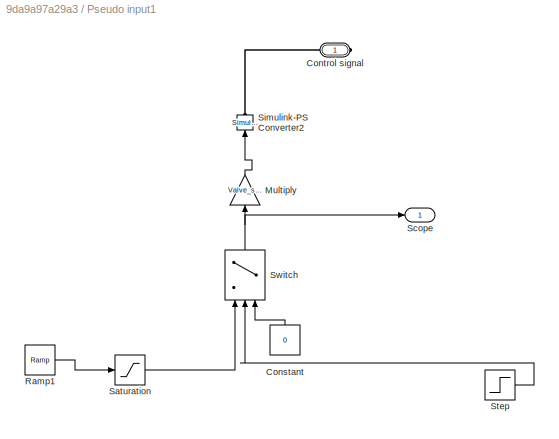
BLOCK [SubSystem] Pseudo input1
  Commented = on
  Ports = [0, 1, 0, 0, 0, 0, 1]
  RequestExecContextInheritance = off
BLOCK [Constant] Pseudo input1/Constant
  Value = 0
BLOCK [PMIOPort] Pseudo input1/Control signal
  Side = Right
BLOCK [Gain] Pseudo input1/Multiply
  Gain = Valve_signal_Unit
  OutDataTypeStr = Inherit: Inherit via internal rule
  ParamDataTypeStr = Inherit: Inherit via internal rule
  SaturateOnIntegerOverflow = off
BLOCK [Reference] Pseudo input1/Ramp1  REF=simulink/Sources/Ramp
  Ports = [0, 1]
  SourceBlock = simulink/Sources/Ramp
  SourceProductBaseCode = SL
  SourceProductName = Simulink
  SourceType = Ramp
BLOCK [Saturate] Pseudo input1/Saturation
  InputPortMap = u0
  LowerLimit = 0
  Ports = [1, 1]
  UpperLimit = P_area
BLOCK [Outport] Pseudo input1/Scope
  IconDisplay = Port number
BLOCK [Reference] Pseudo input1/Simulink-PS Converter2  REF=nesl_utility/Simulink-PS
Converter
  Ports = [1, 0, 0, 0, 0, 0, 1]
  SourceBlock = nesl_utility/Simulink-PS\nConverter
  SourceProductBaseCode = SS
  SourceProductName = Simscape
  SourceType = Simulink-PS\nConverter
BLOCK [Step] Pseudo input1/Step
  After = 0
  Before = 1
  SampleTime = 0
  Time = 500
BLOCK [Switch] Pseudo input1/Switch
  Criteria = u2 > Threshold
  InputSameDT = off
  SaturateOnIntegerOverflow = off
  Threshold = 0.3
BLOCK [SubSystem] Pseudo input2
  Commented = on
  Ports = [0, 1, 0, 0, 0, 0, 1]
  RequestExecContextInheritance = off
BLOCK [Constant] Pseudo input2/Constant
  Value = 0
BLOCK [PMIOPort] Pseudo input2/Control signal
  Side = Right
BLOCK [Reference] Pseudo input2/Ramp1  REF=simulink/Sources/Ramp
  Ports = [0, 1]
  SourceBlock = simulink/Sources/Ramp
  SourceProductBaseCode = SL
  SourceProductName = Simulink
  SourceType = Ramp
BLOCK [Outport] Pseudo input2/Scope
  IconDisplay = Port number
BLOCK [Reference] Pseudo input2/Simulink-PS Converter2  REF=nesl_utility/Simulink-PS
Converter
  Ports = [1, 0, 0, 0, 0, 0, 1]
  SourceBlock = nesl_utility/Simulink-PS\nConverter
  SourceProductBaseCode = SS
  SourceProductName = Simscape
  SourceType = Simulink-PS\nConverter
BLOCK [Step] Pseudo input2/Step
  After = 0
  Before = 1
  SampleTime = 0
  Time = 200
BLOCK [Switch] Pseudo input2/Switch
  Criteria = u2 > Threshold
  InputSameDT = off
  SaturateOnIntegerOverflow = off
  Threshold = 0.3
BLOCK [SubSystem] Pseudo input3
  Commented = on
  Ports = [0, 1, 0, 0, 0, 0, 1]
  RequestExecContextInheritance = off
BLOCK [Constant] Pseudo input3/Constant
  Value = 0
BLOCK [PMIOPort] Pseudo input3/Control signal
  Side = Right
BLOCK [Reference] Pseudo input3/Ramp1  REF=simulink/Sources/Ramp
  Ports = [0, 1]
  SourceBlock = simulink/Sources/Ramp
  SourceProductBaseCode = SL
  SourceProductName = Simulink
  SourceType = Ramp
BLOCK [Outport] Pseudo input3/Scope
  IconDisplay = Port number
BLOCK [Reference] Pseudo input3/Simulink-PS Converter2  REF=nesl_utility/Simulink-PS
Converter
  Ports = [1, 0, 0, 0, 0, 0, 1]
  SourceBlock = nesl_utility/Simulink-PS\nConverter
  SourceProductBaseCode = SS
  SourceProductName = Simscape
  SourceType = Simulink-PS\nConverter
BLOCK [Step] Pseudo input3/Step
  After = 0
  Before = 1
  SampleTime = 0
  Time = 200
BLOCK [Switch] Pseudo input3/Switch
  Criteria = u2 > Threshold
  InputSameDT = off
  SaturateOnIntegerOverflow = off
  Threshold = 0.3
BLOCK [SubSystem] RP-1 Tank
  Commented = on
  Ports = [0, 0, 0, 0, 0, 1, 1]
  RequestExecContextInheritance = off
BLOCK [Reference] RP-1 Tank/Controlled Pressure Source (TL)  REF=fl_lib/Thermal Liquid/Sources/Controlled Pressure
Source (TL)
  Ports = [0, 0, 0, 0, 0, 2, 1]
  SourceBlock = fl_lib/Thermal Liquid/Sources/Controlled Pressure\nSource (TL)
  SourceProductBaseCode = SS
  SourceProductName = Simscape
  SourceType = Controlled Pressure\nSource (TL)
BLOCK [PMIOPort] RP-1 Tank/LOX
  Side = Right
BLOCK [PMIOPort] RP-1 Tank/Pressurant input
  Port = 2
  Side = Left
BLOCK [Reference] RP-1 Tank/Reservoir (TL)  REF=fl_lib/Thermal Liquid/Elements/Reservoir (TL)
  Ports = [0, 0, 0, 0, 0, 1]
  SourceBlock = fl_lib/Thermal Liquid/Elements/Reservoir (TL)
  SourceProductBaseCode = SS
  SourceProductName = Simscape
  SourceType = Reservoir (TL)
BLOCK [SubSystem] RP1 Final
  Commented = on
  Ports = [0, 0, 0, 0, 0, 1]
  RequestExecContextInheritance = off
BLOCK [PMIOPort] RP1 Final/A
  Side = Left
BLOCK [Reference] RP1 Final/Absolute Reference (TL)1  REF=fl_lib/Thermal Liquid/Elements/Absolute Reference
(TL)
  Ports = [0, 0, 0, 0, 0, 1]
  SourceBlock = fl_lib/Thermal Liquid/Elements/Absolute Reference\n(TL)
  SourceProductBaseCode = SS
  SourceProductName = Simscape
  SourceType = Absolute Reference\n(TL)
BLOCK [Goto] RP1 Final/Goto
  GotoTag = RP1_Final_Pressure
  TagVisibility = global
BLOCK [Reference] RP1 Final/PS Terminator  REF=fl_lib/Physical Signals/Sinks/PS Terminator
  Ports = [0, 0, 0, 0, 0, 1]
  SourceBlock = fl_lib/Physical Signals/Sinks/PS Terminator
  SourceProductBaseCode = SS
  SourceProductName = Simscape
  SourceType = PS Terminator
BLOCK [Reference] RP1 Final/PS-Simulink Converter  REF=nesl_utility/PS-Simulink
Converter
  Ports = [0, 1, 0, 0, 0, 1]
  SourceBlock = nesl_utility/PS-Simulink\nConverter
  SourceProductBaseCode = SS
  SourceProductName = Simscape
  SourceType = PS-Simulink\nConverter
BLOCK [Reference] RP1 Final/Pressure & Temperature Sensor (TL)  REF=fl_lib/Thermal Liquid/Sensors/Pressure &
Temperature Sensor
(TL)
  Ports = [0, 0, 0, 0, 0, 1, 3]
  SourceBlock = fl_lib/Thermal Liquid/Sensors/Pressure &\nTemperature Sensor\n(TL)
  SourceProductBaseCode = SS
  SourceProductName = Simscape
  SourceType = Pressure &\nTemperature Sensor\n(TL)
BLOCK [Gain] RP1 Final/Pressure Unit
  Gain = PressureUnit
  OutDataTypeStr = Inherit: Inherit via internal rule
  ParamDataTypeStr = Inherit: Inherit via internal rule
  SaturateOnIntegerOverflow = off
BLOCK [Reference] Ramp  REF=simulink/Sources/Ramp
  Ports = [0, 1]
  SourceBlock = simulink/Sources/Ramp
  SourceProductBaseCode = SL
  SourceProductName = Simulink
  SourceType = Ramp
BLOCK [Reference] Reservoir (G)  REF=fl_lib/Gas/Elements/Reservoir (G)
  Commented = on
  Ports = [0, 0, 0, 0, 0, 1]
  SourceBlock = fl_lib/Gas/Elements/Reservoir (G)
  SourceProductBaseCode = SS
  SourceProductName = Simscape
  SourceType = Reservoir (G)
BLOCK [Reference] Reservoir (G)1  REF=fl_lib/Gas/Elements/Reservoir (G)
  Commented = on
  Ports = [0, 0, 0, 0, 0, 1]
  SourceBlock = fl_lib/Gas/Elements/Reservoir (G)
  SourceProductBaseCode = SS
  SourceProductName = Simscape
  SourceType = Reservoir (G)
BLOCK [Reference] Reservoir (G)2  REF=fl_lib/Gas/Elements/Reservoir (G)
  Commented = on
  Ports = [0, 0, 0, 0, 0, 1]
  SourceBlock = fl_lib/Gas/Elements/Reservoir (G)
  SourceProductBaseCode = SS
  SourceProductName = Simscape
  SourceType = Reservoir (G)
BLOCK [Reference] Reservoir (G)3  REF=fl_lib/Gas/Elements/Reservoir (G)
  Commented = on
  Ports = [0, 0, 0, 0, 0, 1]
  SourceBlock = fl_lib/Gas/Elements/Reservoir (G)
  SourceProductBaseCode = SS
  SourceProductName = Simscape
  SourceType = Reservoir (G)
BLOCK [Reference] Reservoir (G)4  REF=fl_lib/Gas/Elements/Reservoir (G)
  Ports = [0, 0, 0, 0, 0, 1]
  SourceBlock = fl_lib/Gas/Elements/Reservoir (G)
  SourceProductBaseCode = SS
  SourceProductName = Simscape
  SourceType = Reservoir (G)
BLOCK [Reference] Reservoir (G)5  REF=fl_lib/Gas/Elements/Reservoir (G)
  Ports = [0, 0, 0, 0, 0, 1]
  SourceBlock = fl_lib/Gas/Elements/Reservoir (G)
  SourceProductBaseCode = SS
  SourceProductName = Simscape
  SourceType = Reservoir (G)
BLOCK [Reference] Reservoir (G)6  REF=fl_lib/Gas/Elements/Reservoir (G)
  Ports = [0, 0, 0, 0, 0, 1]
  SourceBlock = fl_lib/Gas/Elements/Reservoir (G)
  SourceProductBaseCode = SS
  SourceProductName = Simscape
  SourceType = Reservoir (G)
BLOCK [Reference] Reservoir (G)7  REF=fl_lib/Gas/Elements/Reservoir (G)
  Ports = [0, 0, 0, 0, 0, 1]
  SourceBlock = fl_lib/Gas/Elements/Reservoir (G)
  SourceProductBaseCode = SS
  SourceProductName = Simscape
  SourceType = Reservoir (G)
BLOCK [Reference] Reservoir (TL)  REF=fl_lib/Thermal Liquid/Elements/Reservoir (TL)
  Commented = on
  Ports = [0, 0, 0, 0, 0, 1]
  SourceBlock = fl_lib/Thermal Liquid/Elements/Reservoir (TL)
  SourceProductBaseCode = SS
  SourceProductName = Simscape
  SourceType = Reservoir (TL)
BLOCK [Reference] Reservoir (TL)1  REF=fl_lib/Thermal Liquid/Elements/Reservoir (TL)
  Commented = on
  Ports = [0, 0, 0, 0, 0, 1]
  SourceBlock = fl_lib/Thermal Liquid/Elements/Reservoir (TL)
  SourceProductBaseCode = SS
  SourceProductName = Simscape
  SourceType = Reservoir (TL)
BLOCK [Reference] Reservoir (TL)10  REF=fl_lib/Thermal Liquid/Elements/Reservoir (TL)
  Commented = on
  Ports = [0, 0, 0, 0, 0, 1]
  SourceBlock = fl_lib/Thermal Liquid/Elements/Reservoir (TL)
  SourceProductBaseCode = SS
  SourceProductName = Simscape
  SourceType = Reservoir (TL)
BLOCK [Reference] Reservoir (TL)11  REF=fl_lib/Thermal Liquid/Elements/Reservoir (TL)
  Ports = [0, 0, 0, 0, 0, 1]
  SourceBlock = fl_lib/Thermal Liquid/Elements/Reservoir (TL)
  SourceProductBaseCode = SS
  SourceProductName = Simscape
  SourceType = Reservoir (TL)
BLOCK [Reference] Reservoir (TL)2  REF=fl_lib/Thermal Liquid/Elements/Reservoir (TL)
  Commented = on
  Ports = [0, 0, 0, 0, 0, 1]
  SourceBlock = fl_lib/Thermal Liquid/Elements/Reservoir (TL)
  SourceProductBaseCode = SS
  SourceProductName = Simscape
  SourceType = Reservoir (TL)
BLOCK [Reference] Reservoir (TL)3  REF=fl_lib/Thermal Liquid/Elements/Reservoir (TL)
  Commented = on
  Ports = [0, 0, 0, 0, 0, 1]
  SourceBlock = fl_lib/Thermal Liquid/Elements/Reservoir (TL)
  SourceProductBaseCode = SS
  SourceProductName = Simscape
  SourceType = Reservoir (TL)
BLOCK [Reference] Reservoir (TL)4  REF=fl_lib/Thermal Liquid/Elements/Reservoir (TL)
  Commented = on
  Ports = [0, 0, 0, 0, 0, 1]
  SourceBlock = fl_lib/Thermal Liquid/Elements/Reservoir (TL)
  SourceProductBaseCode = SS
  SourceProductName = Simscape
  SourceType = Reservoir (TL)
BLOCK [Reference] Reservoir (TL)5  REF=fl_lib/Thermal Liquid/Elements/Reservoir (TL)
  Commented = on
  Ports = [0, 0, 0, 0, 0, 1]
  SourceBlock = fl_lib/Thermal Liquid/Elements/Reservoir (TL)
  SourceProductBaseCode = SS
  SourceProductName = Simscape
  SourceType = Reservoir (TL)
BLOCK [Reference] Reservoir (TL)6  REF=fl_lib/Thermal Liquid/Elements/Reservoir (TL)
  Commented = on
  Ports = [0, 0, 0, 0, 0, 1]
  SourceBlock = fl_lib/Thermal Liquid/Elements/Reservoir (TL)
  SourceProductBaseCode = SS
  SourceProductName = Simscape
  SourceType = Reservoir (TL)
BLOCK [Reference] Reservoir (TL)7  REF=fl_lib/Thermal Liquid/Elements/Reservoir (TL)
  Commented = on
  Ports = [0, 0, 0, 0, 0, 1]
  SourceBlock = fl_lib/Thermal Liquid/Elements/Reservoir (TL)
  SourceProductBaseCode = SS
  SourceProductName = Simscape
  SourceType = Reservoir (TL)
BLOCK [Reference] Reservoir (TL)8  REF=fl_lib/Thermal Liquid/Elements/Reservoir (TL)
  Commented = on
  Ports = [0, 0, 0, 0, 0, 1]
  SourceBlock = fl_lib/Thermal Liquid/Elements/Reservoir (TL)
  SourceProductBaseCode = SS
  SourceProductName = Simscape
  SourceType = Reservoir (TL)
BLOCK [Reference] Reservoir (TL)9  REF=fl_lib/Thermal Liquid/Elements/Reservoir (TL)
  Commented = on
  Ports = [0, 0, 0, 0, 0, 1]
  SourceBlock = fl_lib/Thermal Liquid/Elements/Reservoir (TL)
  SourceProductBaseCode = SS
  SourceProductName = Simscape
  SourceType = Reservoir (TL)
BLOCK [Saturate] Saturation
  InputPortMap = u0
  Ports = [1, 1]
  UpperLimit = 0.003
BLOCK [Scope] Scope
  Commented = on
  Floating = off
  NumInputPorts = 2
  Ports = [2]
  ScopeSpecificationString = Simulink.scopes.TimeScopeBlockCfg('CurrentConfiguration', extmgr.ConfigurationSet(extmgr.Configuration('Core','General UI',true),extmgr.Configuration('Core','Source UI',true),extmgr.Configuration('Sources','WiredSimulink',true,'DataLoggingVariableName','ScopeData1'),extmgr.Configuration('Visuals','Time Domain',true,'SerializedDisplays',{struct('MinYLimReal','-284.65266','MaxYLimReal','2779.70593',...<+2052ch>
BLOCK [Scope] Scope1
  Commented = on
  Floating = off
  NumInputPorts = 4
  Ports = [4]
  ScopeSpecificationString = Simulink.scopes.TimeScopeBlockCfg('CurrentConfiguration', extmgr.ConfigurationSet(extmgr.Configuration('Core','General UI',true),extmgr.Configuration('Core','Source UI',true),extmgr.Configuration('Sources','WiredSimulink',true,'DataLoggingVariableName','ScopeData4'),extmgr.Configuration('Visuals','Time Domain',true,'SerializedDisplays',{struct('MinYLimReal','-489.19402','MaxYLimReal','-289.19402',...<+3438ch>
BLOCK [Scope] Scope2
  Commented = on
  Floating = off
  NumInputPorts = 3
  Ports = [3]
  ScopeSpecificationString = Simulink.scopes.TimeScopeBlockCfg('CurrentConfiguration', extmgr.ConfigurationSet(extmgr.Configuration('Core','General UI',true),extmgr.Configuration('Core','Source UI',true),extmgr.Configuration('Sources','WiredSimulink',true,'DataLoggingVariableName','ScopeData5'),extmgr.Configuration('Visuals','Time Domain',true,'SerializedDisplays',{struct('MinYLimReal','-1.00000','MaxYLimReal','1.00000','YLab...<+2783ch>
BLOCK [Scope] Scope3
  Floating = off
  NumInputPorts = 2
  Ports = [2]
  ScopeSpecificationString = Simulink.scopes.TimeScopeBlockCfg('CurrentConfiguration', extmgr.ConfigurationSet(extmgr.Configuration('Core','General UI',true),extmgr.Configuration('Core','Source UI',true),extmgr.Configuration('Sources','WiredSimulink',true,'DataLoggingVariableName','ScopeData1'),extmgr.Configuration('Visuals','Time Domain',true,'SerializedDisplays',{struct('MinYLimReal','480.76222','MaxYLimReal','502.13753','Y...<+2049ch>
BLOCK [Scope] Scope4
  Floating = off
  NumInputPorts = 2
  Ports = [2]
  ScopeSpecificationString = Simulink.scopes.TimeScopeBlockCfg('CurrentConfiguration', extmgr.ConfigurationSet(extmgr.Configuration('Core','General UI',true),extmgr.Configuration('Core','Source UI',true),extmgr.Configuration('Sources','WiredSimulink',true,'DataLoggingVariableName','ScopeData2'),extmgr.Configuration('Visuals','Time Domain',true,'SerializedDisplays',{struct('MinYLimReal','19898675.00000','MaxYLimReal','39898675...<+2145ch>
BLOCK [Scope] Scope5
  Floating = off
  NumInputPorts = 1
  Ports = [1]
  ScopeSpecificationString = Simulink.scopes.TimeScopeBlockCfg('CurrentConfiguration', extmgr.ConfigurationSet(extmgr.Configuration('Core','General UI',true),extmgr.Configuration('Core','Source UI',true),extmgr.Configuration('Sources','WiredSimulink',true,'DataLoggingVariableName','ScopeData3'),extmgr.Configuration('Visuals','Time Domain',true,'SerializedDisplays',{struct('MinYLimReal','-0.00037','MaxYLimReal','0.00337','YLab...<+1396ch>
BLOCK [Reference] Simulink-PS Converter  REF=nesl_utility/Simulink-PS
Converter
  Ports = [1, 0, 0, 0, 0, 0, 1]
  SourceBlock = nesl_utility/Simulink-PS\nConverter
  SourceProductBaseCode = SS
  SourceProductName = Simscape
  SourceType = Simulink-PS\nConverter
BLOCK [Reference] Simulink-PS Converter1  REF=nesl_utility/Simulink-PS
Converter
  Commented = on
  Ports = [1, 0, 0, 0, 0, 0, 1]
  SourceBlock = nesl_utility/Simulink-PS\nConverter
  SourceProductBaseCode = SS
  SourceProductName = Simscape
  SourceType = Simulink-PS\nConverter
BLOCK [Reference] Simulink-PS Converter2  REF=nesl_utility/Simulink-PS
Converter
  Commented = on
  Ports = [1, 0, 0, 0, 0, 0, 1]
  SourceBlock = nesl_utility/Simulink-PS\nConverter
  SourceProductBaseCode = SS
  SourceProductName = Simscape
  SourceType = Simulink-PS\nConverter
BLOCK [Reference] Solver Configuration  REF=nesl_utility/Solver
Configuration
  Commented = on
  Ports = [0, 0, 0, 0, 0, 0, 1]
  SourceBlock = nesl_utility/Solver\nConfiguration
  SourceProductBaseCode = SS
  SourceProductName = Simscape
  SourceType = Solver\nConfiguration
BLOCK [Reference] Solver Configuration1  REF=nesl_utility/Solver
Configuration
  Commented = on
  Ports = [0, 0, 0, 0, 0, 0, 1]
  SourceBlock = nesl_utility/Solver\nConfiguration
  SourceProductBaseCode = SS
  SourceProductName = Simscape
  SourceType = Solver\nConfiguration
BLOCK [Reference] Solver Configuration2  REF=nesl_utility/Solver
Configuration
  Commented = on
  Ports = [0, 0, 0, 0, 0, 0, 1]
  SourceBlock = nesl_utility/Solver\nConfiguration
  SourceProductBaseCode = SS
  SourceProductName = Simscape
  SourceType = Solver\nConfiguration
BLOCK [Reference] Solver Configuration3  REF=nesl_utility/Solver
Configuration
  Commented = on
  Ports = [0, 0, 0, 0, 0, 0, 1]
  SourceBlock = nesl_utility/Solver\nConfiguration
  SourceProductBaseCode = SS
  SourceProductName = Simscape
  SourceType = Solver\nConfiguration
BLOCK [Reference] Solver Configuration4  REF=nesl_utility/Solver
Configuration
  Commented = on
  Ports = [0, 0, 0, 0, 0, 0, 1]
  SourceBlock = nesl_utility/Solver\nConfiguration
  SourceProductBaseCode = SS
  SourceProductName = Simscape
  SourceType = Solver\nConfiguration
BLOCK [Reference] Solver Configuration5  REF=nesl_utility/Solver
Configuration
  Ports = [0, 0, 0, 0, 0, 0, 1]
  SourceBlock = nesl_utility/Solver\nConfiguration
  SourceProductBaseCode = SS
  SourceProductName = Simscape
  SourceType = Solver\nConfiguration
BLOCK [SubSystem] Subsystem1
  Commented = on
  Ports = [0, 0, 0, 0, 0, 1]
  RequestExecContextInheritance = off
BLOCK [PMIOPort] Subsystem1/A
  Side = Left
BLOCK [Reference] Subsystem1/Absolute Reference (TL)1  REF=fl_lib/Thermal Liquid/Elements/Absolute Reference
(TL)
  Ports = [0, 0, 0, 0, 0, 1]
  SourceBlock = fl_lib/Thermal Liquid/Elements/Absolute Reference\n(TL)
  SourceProductBaseCode = SS
  SourceProductName = Simscape
  SourceType = Absolute Reference\n(TL)
BLOCK [Goto] Subsystem1/Goto
  GotoTag = O_PT_2
  TagVisibility = global
BLOCK [Goto] Subsystem1/Goto1
  GotoTag = O_TT_1
  TagVisibility = global
BLOCK [Reference] Subsystem1/PS-Simulink Converter  REF=nesl_utility/PS-Simulink
Converter
  Ports = [0, 1, 0, 0, 0, 1]
  SourceBlock = nesl_utility/PS-Simulink\nConverter
  SourceProductBaseCode = SS
  SourceProductName = Simscape
  SourceType = PS-Simulink\nConverter
BLOCK [Reference] Subsystem1/PS-Simulink Converter1  REF=nesl_utility/PS-Simulink
Converter
  Ports = [0, 1, 0, 0, 0, 1]
  SourceBlock = nesl_utility/PS-Simulink\nConverter
  SourceProductBaseCode = SS
  SourceProductName = Simscape
  SourceType = PS-Simulink\nConverter
BLOCK [Reference] Subsystem1/Pressure & Temperature Sensor (TL)  REF=fl_lib/Thermal Liquid/Sensors/Pressure &
Temperature Sensor
(TL)
  Ports = [0, 0, 0, 0, 0, 1, 3]
  SourceBlock = fl_lib/Thermal Liquid/Sensors/Pressure &\nTemperature Sensor\n(TL)
  SourceProductBaseCode = SS
  SourceProductName = Simscape
  SourceType = Pressure &\nTemperature Sensor\n(TL)
BLOCK [Gain] Subsystem1/Pressure Unit
  Gain = PressureUnit
  OutDataTypeStr = Inherit: Inherit via internal rule
  ParamDataTypeStr = Inherit: Inherit via internal rule
  SaturateOnIntegerOverflow = off
BLOCK [SubSystem] Subsystem10
  Commented = on
  Ports = [0, 0, 0, 0, 0, 1, 1]
  RequestExecContextInheritance = off
BLOCK [PMIOPort] Subsystem10/A
  Side = Left
BLOCK [Reference] Subsystem10/Absolute Reference (TL)1  REF=fl_lib/Thermal Liquid/Elements/Absolute Reference
(TL)
  Ports = [0, 0, 0, 0, 0, 1]
  SourceBlock = fl_lib/Thermal Liquid/Elements/Absolute Reference\n(TL)
  SourceProductBaseCode = SS
  SourceProductName = Simscape
  SourceType = Absolute Reference\n(TL)
BLOCK [PMIOPort] Subsystem10/LOX
  Port = 2
  Side = Right
BLOCK [Reference] Subsystem10/PS Terminator  REF=fl_lib/Physical Signals/Sinks/PS Terminator
  Ports = [0, 0, 0, 0, 0, 1]
  SourceBlock = fl_lib/Physical Signals/Sinks/PS Terminator
  SourceProductBaseCode = SS
  SourceProductName = Simscape
  SourceType = PS Terminator
BLOCK [Reference] Subsystem10/Pressure & Temperature Sensor (TL)  REF=fl_lib/Thermal Liquid/Sensors/Pressure &
Temperature Sensor
(TL)
  Ports = [0, 0, 0, 0, 0, 1, 3]
  SourceBlock = fl_lib/Thermal Liquid/Sensors/Pressure &\nTemperature Sensor\n(TL)
  SourceProductBaseCode = SS
  SourceProductName = Simscape
  SourceType = Pressure &\nTemperature Sensor\n(TL)
BLOCK [SubSystem] Subsystem2
  Commented = on
  Ports = [0, 0, 0, 0, 0, 1]
  RequestExecContextInheritance = off
BLOCK [PMIOPort] Subsystem2/A
  Side = Left
BLOCK [Reference] Subsystem2/Absolute Reference (TL)1  REF=fl_lib/Thermal Liquid/Elements/Absolute Reference
(TL)
  Ports = [0, 0, 0, 0, 0, 1]
  SourceBlock = fl_lib/Thermal Liquid/Elements/Absolute Reference\n(TL)
  SourceProductBaseCode = SS
  SourceProductName = Simscape
  SourceType = Absolute Reference\n(TL)
BLOCK [Goto] Subsystem2/Goto
  GotoTag = O_PT_3
  TagVisibility = global
BLOCK [Reference] Subsystem2/PS Terminator  REF=fl_lib/Physical Signals/Sinks/PS Terminator
  Ports = [0, 0, 0, 0, 0, 1]
  SourceBlock = fl_lib/Physical Signals/Sinks/PS Terminator
  SourceProductBaseCode = SS
  SourceProductName = Simscape
  SourceType = PS Terminator
BLOCK [Reference] Subsystem2/PS-Simulink Converter  REF=nesl_utility/PS-Simulink
Converter
  Ports = [0, 1, 0, 0, 0, 1]
  SourceBlock = nesl_utility/PS-Simulink\nConverter
  SourceProductBaseCode = SS
  SourceProductName = Simscape
  SourceType = PS-Simulink\nConverter
BLOCK [Reference] Subsystem2/Pressure & Temperature Sensor (TL)  REF=fl_lib/Thermal Liquid/Sensors/Pressure &
Temperature Sensor
(TL)
  Ports = [0, 0, 0, 0, 0, 1, 3]
  SourceBlock = fl_lib/Thermal Liquid/Sensors/Pressure &\nTemperature Sensor\n(TL)
  SourceProductBaseCode = SS
  SourceProductName = Simscape
  SourceType = Pressure &\nTemperature Sensor\n(TL)
BLOCK [Gain] Subsystem2/Pressure Unit
  Gain = PressureUnit
  OutDataTypeStr = Inherit: Inherit via internal rule
  ParamDataTypeStr = Inherit: Inherit via internal rule
  SaturateOnIntegerOverflow = off
BLOCK [SubSystem] Subsystem3
  Commented = on
  Ports = [0, 0, 0, 0, 0, 1]
  RequestExecContextInheritance = off
BLOCK [PMIOPort] Subsystem3/A
  Side = Left
BLOCK [Reference] Subsystem3/Absolute Reference (TL)1  REF=fl_lib/Thermal Liquid/Elements/Absolute Reference
(TL)
  Ports = [0, 0, 0, 0, 0, 1]
  SourceBlock = fl_lib/Thermal Liquid/Elements/Absolute Reference\n(TL)
  SourceProductBaseCode = SS
  SourceProductName = Simscape
  SourceType = Absolute Reference\n(TL)
BLOCK [Goto] Subsystem3/Goto
  GotoTag = O_PT_1
  TagVisibility = global
BLOCK [Reference] Subsystem3/PS Terminator  REF=fl_lib/Physical Signals/Sinks/PS Terminator
  Ports = [0, 0, 0, 0, 0, 1]
  SourceBlock = fl_lib/Physical Signals/Sinks/PS Terminator
  SourceProductBaseCode = SS
  SourceProductName = Simscape
  SourceType = PS Terminator
BLOCK [Reference] Subsystem3/PS-Simulink Converter  REF=nesl_utility/PS-Simulink
Converter
  Ports = [0, 1, 0, 0, 0, 1]
  SourceBlock = nesl_utility/PS-Simulink\nConverter
  SourceProductBaseCode = SS
  SourceProductName = Simscape
  SourceType = PS-Simulink\nConverter
BLOCK [Reference] Subsystem3/Pressure & Temperature Sensor (TL)  REF=fl_lib/Thermal Liquid/Sensors/Pressure &
Temperature Sensor
(TL)
  Ports = [0, 0, 0, 0, 0, 1, 3]
  SourceBlock = fl_lib/Thermal Liquid/Sensors/Pressure &\nTemperature Sensor\n(TL)
  SourceProductBaseCode = SS
  SourceProductName = Simscape
  SourceType = Pressure &\nTemperature Sensor\n(TL)
BLOCK [Gain] Subsystem3/Pressure Unit
  Gain = PressureUnit
  OutDataTypeStr = Inherit: Inherit via internal rule
  ParamDataTypeStr = Inherit: Inherit via internal rule
  SaturateOnIntegerOverflow = off
BLOCK [SubSystem] Subsystem4
  Commented = on
  Ports = [0, 0, 0, 0, 0, 1]
  RequestExecContextInheritance = off
BLOCK [PMIOPort] Subsystem4/A
  Side = Left
BLOCK [Reference] Subsystem4/Absolute Reference (TL)1  REF=fl_lib/Thermal Liquid/Elements/Absolute Reference
(TL)
  Ports = [0, 0, 0, 0, 0, 1]
  SourceBlock = fl_lib/Thermal Liquid/Elements/Absolute Reference\n(TL)
  SourceProductBaseCode = SS
  SourceProductName = Simscape
  SourceType = Absolute Reference\n(TL)
BLOCK [Goto] Subsystem4/Goto
  GotoTag = F_PT_2
  TagVisibility = global
BLOCK [Goto] Subsystem4/Goto1
  GotoTag = F_TT_2
  TagVisibility = global
BLOCK [Reference] Subsystem4/PS-Simulink Converter  REF=nesl_utility/PS-Simulink
Converter
  Ports = [0, 1, 0, 0, 0, 1]
  SourceBlock = nesl_utility/PS-Simulink\nConverter
  SourceProductBaseCode = SS
  SourceProductName = Simscape
  SourceType = PS-Simulink\nConverter
BLOCK [Reference] Subsystem4/PS-Simulink Converter1  REF=nesl_utility/PS-Simulink
Converter
  Ports = [0, 1, 0, 0, 0, 1]
  SourceBlock = nesl_utility/PS-Simulink\nConverter
  SourceProductBaseCode = SS
  SourceProductName = Simscape
  SourceType = PS-Simulink\nConverter
BLOCK [Reference] Subsystem4/Pressure & Temperature Sensor (TL)  REF=fl_lib/Thermal Liquid/Sensors/Pressure &
Temperature Sensor
(TL)
  Ports = [0, 0, 0, 0, 0, 1, 3]
  SourceBlock = fl_lib/Thermal Liquid/Sensors/Pressure &\nTemperature Sensor\n(TL)
  SourceProductBaseCode = SS
  SourceProductName = Simscape
  SourceType = Pressure &\nTemperature Sensor\n(TL)
BLOCK [Gain] Subsystem4/Pressure Unit
  Gain = PressureUnit
  OutDataTypeStr = Inherit: Inherit via internal rule
  ParamDataTypeStr = Inherit: Inherit via internal rule
  SaturateOnIntegerOverflow = off
BLOCK [SubSystem] Subsystem5
  Commented = on
  Ports = [0, 0, 0, 0, 0, 1]
  RequestExecContextInheritance = off
BLOCK [PMIOPort] Subsystem5/A
  Side = Left
BLOCK [Reference] Subsystem5/Absolute Reference (TL)1  REF=fl_lib/Thermal Liquid/Elements/Absolute Reference
(TL)
  Ports = [0, 0, 0, 0, 0, 1]
  SourceBlock = fl_lib/Thermal Liquid/Elements/Absolute Reference\n(TL)
  SourceProductBaseCode = SS
  SourceProductName = Simscape
  SourceType = Absolute Reference\n(TL)
BLOCK [Goto] Subsystem5/Goto
  GotoTag = F_PT_3
  TagVisibility = global
BLOCK [Goto] Subsystem5/Goto1
  GotoTag = F_TT_3
  TagVisibility = global
BLOCK [Reference] Subsystem5/PS-Simulink Converter  REF=nesl_utility/PS-Simulink
Converter
  Ports = [0, 1, 0, 0, 0, 1]
  SourceBlock = nesl_utility/PS-Simulink\nConverter
  SourceProductBaseCode = SS
  SourceProductName = Simscape
  SourceType = PS-Simulink\nConverter
BLOCK [Reference] Subsystem5/PS-Simulink Converter1  REF=nesl_utility/PS-Simulink
Converter
  Ports = [0, 1, 0, 0, 0, 1]
  SourceBlock = nesl_utility/PS-Simulink\nConverter
  SourceProductBaseCode = SS
  SourceProductName = Simscape
  SourceType = PS-Simulink\nConverter
BLOCK [Reference] Subsystem5/Pressure & Temperature Sensor (TL)  REF=fl_lib/Thermal Liquid/Sensors/Pressure &
Temperature Sensor
(TL)
  Ports = [0, 0, 0, 0, 0, 1, 3]
  SourceBlock = fl_lib/Thermal Liquid/Sensors/Pressure &\nTemperature Sensor\n(TL)
  SourceProductBaseCode = SS
  SourceProductName = Simscape
  SourceType = Pressure &\nTemperature Sensor\n(TL)
BLOCK [Gain] Subsystem5/Pressure Unit
  Gain = PressureUnit
  OutDataTypeStr = Inherit: Inherit via internal rule
  ParamDataTypeStr = Inherit: Inherit via internal rule
  SaturateOnIntegerOverflow = off
BLOCK [SubSystem] Subsystem6
  Commented = on
  Ports = [0, 0, 0, 0, 0, 1]
  RequestExecContextInheritance = off
BLOCK [PMIOPort] Subsystem6/A
  Side = Left
BLOCK [Reference] Subsystem6/Absolute Reference (TL)1  REF=fl_lib/Thermal Liquid/Elements/Absolute Reference
(TL)
  Ports = [0, 0, 0, 0, 0, 1]
  SourceBlock = fl_lib/Thermal Liquid/Elements/Absolute Reference\n(TL)
  SourceProductBaseCode = SS
  SourceProductName = Simscape
  SourceType = Absolute Reference\n(TL)
BLOCK [Goto] Subsystem6/Goto
  GotoTag = F_PT_1
  TagVisibility = global
BLOCK [Reference] Subsystem6/PS Terminator  REF=fl_lib/Physical Signals/Sinks/PS Terminator
  Ports = [0, 0, 0, 0, 0, 1]
  SourceBlock = fl_lib/Physical Signals/Sinks/PS Terminator
  SourceProductBaseCode = SS
  SourceProductName = Simscape
  SourceType = PS Terminator
BLOCK [Reference] Subsystem6/PS-Simulink Converter  REF=nesl_utility/PS-Simulink
Converter
  Ports = [0, 1, 0, 0, 0, 1]
  SourceBlock = nesl_utility/PS-Simulink\nConverter
  SourceProductBaseCode = SS
  SourceProductName = Simscape
  SourceType = PS-Simulink\nConverter
BLOCK [Reference] Subsystem6/Pressure & Temperature Sensor (TL)  REF=fl_lib/Thermal Liquid/Sensors/Pressure &
Temperature Sensor
(TL)
  Ports = [0, 0, 0, 0, 0, 1, 3]
  SourceBlock = fl_lib/Thermal Liquid/Sensors/Pressure &\nTemperature Sensor\n(TL)
  SourceProductBaseCode = SS
  SourceProductName = Simscape
  SourceType = Pressure &\nTemperature Sensor\n(TL)
BLOCK [Gain] Subsystem6/Pressure Unit
  Gain = PressureUnit
  OutDataTypeStr = Inherit: Inherit via internal rule
  ParamDataTypeStr = Inherit: Inherit via internal rule
  SaturateOnIntegerOverflow = off
BLOCK [SubSystem] Subsystem7
  Commented = on
  Ports = [0, 0, 0, 0, 0, 1]
  RequestExecContextInheritance = off
BLOCK [PMIOPort] Subsystem7/A
  Side = Left
BLOCK [Reference] Subsystem7/Absolute Reference (TL)1  REF=fl_lib/Thermal Liquid/Elements/Absolute Reference
(TL)
  Ports = [0, 0, 0, 0, 0, 1]
  SourceBlock = fl_lib/Thermal Liquid/Elements/Absolute Reference\n(TL)
  SourceProductBaseCode = SS
  SourceProductName = Simscape
  SourceType = Absolute Reference\n(TL)
BLOCK [Goto] Subsystem7/Goto
  GotoTag = P_PT_1
  TagVisibility = global
BLOCK [Goto] Subsystem7/Goto1
  GotoTag = P_TT_1
  TagVisibility = global
BLOCK [Reference] Subsystem7/PS-Simulink Converter  REF=nesl_utility/PS-Simulink
Converter
  Ports = [0, 1, 0, 0, 0, 1]
  SourceBlock = nesl_utility/PS-Simulink\nConverter
  SourceProductBaseCode = SS
  SourceProductName = Simscape
  SourceType = PS-Simulink\nConverter
BLOCK [Reference] Subsystem7/PS-Simulink Converter1  REF=nesl_utility/PS-Simulink
Converter
  Ports = [0, 1, 0, 0, 0, 1]
  SourceBlock = nesl_utility/PS-Simulink\nConverter
  SourceProductBaseCode = SS
  SourceProductName = Simscape
  SourceType = PS-Simulink\nConverter
BLOCK [Reference] Subsystem7/Pressure & Temperature Sensor (TL)  REF=fl_lib/Thermal Liquid/Sensors/Pressure &
Temperature Sensor
(TL)
  Ports = [0, 0, 0, 0, 0, 1, 3]
  SourceBlock = fl_lib/Thermal Liquid/Sensors/Pressure &\nTemperature Sensor\n(TL)
  SourceProductBaseCode = SS
  SourceProductName = Simscape
  SourceType = Pressure &\nTemperature Sensor\n(TL)
BLOCK [Gain] Subsystem7/Pressure Unit
  Gain = PressureUnit
  OutDataTypeStr = Inherit: Inherit via internal rule
  ParamDataTypeStr = Inherit: Inherit via internal rule
  SaturateOnIntegerOverflow = off
BLOCK [SubSystem] Subsystem8
  Commented = on
  Ports = [0, 0, 0, 0, 0, 1]
  RequestExecContextInheritance = off
BLOCK [PMIOPort] Subsystem8/A
  Side = Left
BLOCK [Reference] Subsystem8/Absolute Reference (TL)1  REF=fl_lib/Thermal Liquid/Elements/Absolute Reference
(TL)
  Ports = [0, 0, 0, 0, 0, 1]
  SourceBlock = fl_lib/Thermal Liquid/Elements/Absolute Reference\n(TL)
  SourceProductBaseCode = SS
  SourceProductName = Simscape
  SourceType = Absolute Reference\n(TL)
BLOCK [Goto] Subsystem8/Goto
  GotoTag = P_PT_3
  TagVisibility = global
BLOCK [Goto] Subsystem8/Goto1
  GotoTag = P_TT_3
  TagVisibility = global
BLOCK [Reference] Subsystem8/PS-Simulink Converter  REF=nesl_utility/PS-Simulink
Converter
  Ports = [0, 1, 0, 0, 0, 1]
  SourceBlock = nesl_utility/PS-Simulink\nConverter
  SourceProductBaseCode = SS
  SourceProductName = Simscape
  SourceType = PS-Simulink\nConverter
BLOCK [Reference] Subsystem8/PS-Simulink Converter1  REF=nesl_utility/PS-Simulink
Converter
  Ports = [0, 1, 0, 0, 0, 1]
  SourceBlock = nesl_utility/PS-Simulink\nConverter
  SourceProductBaseCode = SS
  SourceProductName = Simscape
  SourceType = PS-Simulink\nConverter
BLOCK [Reference] Subsystem8/Pressure & Temperature Sensor (TL)  REF=fl_lib/Thermal Liquid/Sensors/Pressure &
Temperature Sensor
(TL)
  Ports = [0, 0, 0, 0, 0, 1, 3]
  SourceBlock = fl_lib/Thermal Liquid/Sensors/Pressure &\nTemperature Sensor\n(TL)
  SourceProductBaseCode = SS
  SourceProductName = Simscape
  SourceType = Pressure &\nTemperature Sensor\n(TL)
BLOCK [Gain] Subsystem8/Pressure Unit
  Gain = PressureUnit
  OutDataTypeStr = Inherit: Inherit via internal rule
  ParamDataTypeStr = Inherit: Inherit via internal rule
  SaturateOnIntegerOverflow = off
BLOCK [SubSystem] Subsystem9
  Commented = on
  Ports = [0, 0, 0, 0, 0, 1]
  RequestExecContextInheritance = off
BLOCK [PMIOPort] Subsystem9/A
  Side = Left
BLOCK [Reference] Subsystem9/Absolute Reference (TL)1  REF=fl_lib/Thermal Liquid/Elements/Absolute Reference
(TL)
  Ports = [0, 0, 0, 0, 0, 1]
  SourceBlock = fl_lib/Thermal Liquid/Elements/Absolute Reference\n(TL)
  SourceProductBaseCode = SS
  SourceProductName = Simscape
  SourceType = Absolute Reference\n(TL)
BLOCK [Goto] Subsystem9/Goto
  GotoTag = P_PT_2
  TagVisibility = global
BLOCK [Goto] Subsystem9/Goto1
  GotoTag = P_TT_2
  TagVisibility = global
BLOCK [Reference] Subsystem9/PS-Simulink Converter  REF=nesl_utility/PS-Simulink
Converter
  Ports = [0, 1, 0, 0, 0, 1]
  SourceBlock = nesl_utility/PS-Simulink\nConverter
  SourceProductBaseCode = SS
  SourceProductName = Simscape
  SourceType = PS-Simulink\nConverter
BLOCK [Reference] Subsystem9/PS-Simulink Converter1  REF=nesl_utility/PS-Simulink
Converter
  Ports = [0, 1, 0, 0, 0, 1]
  SourceBlock = nesl_utility/PS-Simulink\nConverter
  SourceProductBaseCode = SS
  SourceProductName = Simscape
  SourceType = PS-Simulink\nConverter
BLOCK [Reference] Subsystem9/Pressure & Temperature Sensor (TL)  REF=fl_lib/Thermal Liquid/Sensors/Pressure &
Temperature Sensor
(TL)
  Ports = [0, 0, 0, 0, 0, 1, 3]
  SourceBlock = fl_lib/Thermal Liquid/Sensors/Pressure &\nTemperature Sensor\n(TL)
  SourceProductBaseCode = SS
  SourceProductName = Simscape
  SourceType = Pressure &\nTemperature Sensor\n(TL)
BLOCK [Gain] Subsystem9/Pressure Unit
  Gain = PressureUnit
  OutDataTypeStr = Inherit: Inherit via internal rule
  ParamDataTypeStr = Inherit: Inherit via internal rule
  SaturateOnIntegerOverflow = off
BLOCK [Reference] Tank (G-TL)  REF=SimscapeFluids_lib/Fluid Network
Interfaces/Tanks & Accumulators/Tank (G-TL)
  Commented = on
  Ports = [0, 0, 0, 0, 0, 3, 4]
  SourceBlock = SimscapeFluids_lib/Fluid Network\nInterfaces/Tanks & Accumulators/Tank (G-TL)
  SourceProductBaseCode = SH
  SourceProductName = Simscape Fluids
  SourceType = Tank (G-TL)
BLOCK [Reference] Tank (G-TL)1  REF=SimscapeFluids_lib/Fluid Network
Interfaces/Tanks & Accumulators/Tank (G-TL)
  Ports = [0, 0, 0, 0, 0, 3, 4]
  SourceBlock = SimscapeFluids_lib/Fluid Network\nInterfaces/Tanks & Accumulators/Tank (G-TL)
  SourceProductBaseCode = SH
  SourceProductName = Simscape Fluids
  SourceType = Tank (G-TL)
BLOCK [Reference] Tank (TL)  REF=SimscapeFluids_lib/Thermal Liquid/Tanks & Accumulators/Tank (TL)
  Commented = on
  Ports = [0, 0, 0, 0, 0, 1, 4]
  SourceBlock = SimscapeFluids_lib/Thermal Liquid/Tanks & Accumulators/Tank (TL)
  SourceProductBaseCode = SH
  SourceProductName = Simscape Fluids
  SourceType = Tank (TL)
BLOCK [Reference] Thermal Liquid Properties (TL)  REF=SimscapeFluids_lib/Thermal Liquid/Utilities/Thermal Liquid
Properties (TL)
  Commented = on
  Ports = [0, 0, 0, 0, 0, 0, 1]
  SourceBlock = SimscapeFluids_lib/Thermal Liquid/Utilities/Thermal Liquid\nProperties (TL)
  SourceProductBaseCode = SH
  SourceProductName = Simscape Fluids
  SourceType = Thermal Liquid\nProperties (TL)
BLOCK [Reference] To LOX  REF=SimscapeFluids_lib/Thermal Liquid/Tanks & Accumulators/Tank (TL)
  Commented = on
  Ports = [0, 0, 0, 0, 0, 1, 4]
  SourceBlock = SimscapeFluids_lib/Thermal Liquid/Tanks & Accumulators/Tank (TL)
  SourceProductBaseCode = SH
  SourceProductName = Simscape Fluids
  SourceType = Tank (TL)
BLOCK [Reference] To RP-1  REF=SimscapeFluids_lib/Thermal Liquid/Tanks & Accumulators/Tank (TL)
  Commented = on
  Ports = [0, 0, 0, 0, 0, 1, 4]
  SourceBlock = SimscapeFluids_lib/Thermal Liquid/Tanks & Accumulators/Tank (TL)
  SourceProductBaseCode = SH
  SourceProductName = Simscape Fluids
  SourceType = Tank (TL)
BLOCK [SubSystem] Valve Actuation Block
  Commented = on
  Ports = [1, 0, 0, 0, 0, 0, 1]
  RequestExecContextInheritance = off
BLOCK [Inport] Valve Actuation Block/Boolean signal
  IconDisplay = Port number
BLOCK [Constant] Valve Actuation Block/Constant
  Value = 0
BLOCK [Constant] Valve Actuation Block/Constant1
  Value = P_area
BLOCK [PMIOPort] Valve Actuation Block/Control signal
  Side = Right
BLOCK [Gain] Valve Actuation Block/Multiply
  Gain = Valve_signal_Unit
  OutDataTypeStr = Inherit: Inherit via internal rule
  ParamDataTypeStr = Inherit: Inherit via internal rule
  SaturateOnIntegerOverflow = off
BLOCK [Reference] Valve Actuation Block/Simulink-PS Converter2  REF=nesl_utility/Simulink-PS
Converter
  Ports = [1, 0, 0, 0, 0, 0, 1]
  SourceBlock = nesl_utility/Simulink-PS\nConverter
  SourceProductBaseCode = SS
  SourceProductName = Simscape
  SourceType = Simulink-PS\nConverter
BLOCK [Switch] Valve Actuation Block/Switch
  InputSameDT = off
  SaturateOnIntegerOverflow = off
  Threshold = 1
BLOCK [SubSystem] Valve Actuation Block1
  Commented = on
  Ports = [1, 0, 0, 0, 0, 0, 1]
  RequestExecContextInheritance = off
BLOCK [Inport] Valve Actuation Block1/Boolean signal
  IconDisplay = Port number
BLOCK [Constant] Valve Actuation Block1/Constant
  Value = 0
BLOCK [Constant] Valve Actuation Block1/Constant1
  Value = P_area
BLOCK [PMIOPort] Valve Actuation Block1/Control signal
  Side = Right
BLOCK [Gain] Valve Actuation Block1/Multiply
  Gain = Valve_signal_Unit
  OutDataTypeStr = Inherit: Inherit via internal rule
  ParamDataTypeStr = Inherit: Inherit via internal rule
  SaturateOnIntegerOverflow = off
BLOCK [Reference] Valve Actuation Block1/Simulink-PS Converter2  REF=nesl_utility/Simulink-PS
Converter
  Ports = [1, 0, 0, 0, 0, 0, 1]
  SourceBlock = nesl_utility/Simulink-PS\nConverter
  SourceProductBaseCode = SS
  SourceProductName = Simscape
  SourceType = Simulink-PS\nConverter
BLOCK [Switch] Valve Actuation Block1/Switch
  InputSameDT = off
  SaturateOnIntegerOverflow = off
  Threshold = 1
BLOCK [SubSystem] Valve Actuation Block10
  Commented = on
  Ports = [1, 0, 0, 0, 0, 0, 1]
  RequestExecContextInheritance = off
BLOCK [Inport] Valve Actuation Block10/Boolean signal
  IconDisplay = Port number
BLOCK [Constant] Valve Actuation Block10/Constant
  Value = 0
BLOCK [Constant] Valve Actuation Block10/Constant1
  Value = R_area
BLOCK [PMIOPort] Valve Actuation Block10/Control signal
  Side = Right
BLOCK [Gain] Valve Actuation Block10/Multiply
  Gain = Valve_signal_Unit
  OutDataTypeStr = Inherit: Inherit via internal rule
  ParamDataTypeStr = Inherit: Inherit via internal rule
  SaturateOnIntegerOverflow = off
BLOCK [Reference] Valve Actuation Block10/Simulink-PS Converter2  REF=nesl_utility/Simulink-PS
Converter
  Ports = [1, 0, 0, 0, 0, 0, 1]
  SourceBlock = nesl_utility/Simulink-PS\nConverter
  SourceProductBaseCode = SS
  SourceProductName = Simscape
  SourceType = Simulink-PS\nConverter
BLOCK [Switch] Valve Actuation Block10/Switch
  InputSameDT = off
  SaturateOnIntegerOverflow = off
  Threshold = 1
BLOCK [SubSystem] Valve Actuation Block11
  Commented = on
  Ports = [1, 0, 0, 0, 0, 0, 1]
  RequestExecContextInheritance = off
BLOCK [Inport] Valve Actuation Block11/Boolean signal
  IconDisplay = Port number
BLOCK [Constant] Valve Actuation Block11/Constant
  Value = 0
BLOCK [Constant] Valve Actuation Block11/Constant1
  Value = R_area
BLOCK [PMIOPort] Valve Actuation Block11/Control signal
  Side = Right
BLOCK [Gain] Valve Actuation Block11/Multiply
  Gain = Valve_signal_Unit
  OutDataTypeStr = Inherit: Inherit via internal rule
  ParamDataTypeStr = Inherit: Inherit via internal rule
  SaturateOnIntegerOverflow = off
BLOCK [Reference] Valve Actuation Block11/Simulink-PS Converter2  REF=nesl_utility/Simulink-PS
Converter
  Ports = [1, 0, 0, 0, 0, 0, 1]
  SourceBlock = nesl_utility/Simulink-PS\nConverter
  SourceProductBaseCode = SS
  SourceProductName = Simscape
  SourceType = Simulink-PS\nConverter
BLOCK [Switch] Valve Actuation Block11/Switch
  InputSameDT = off
  SaturateOnIntegerOverflow = off
  Threshold = 1
BLOCK [SubSystem] Valve Actuation Block2
  Commented = on
  Ports = [1, 0, 0, 0, 0, 0, 1]
  RequestExecContextInheritance = off
BLOCK [Inport] Valve Actuation Block2/Boolean signal
  IconDisplay = Port number
BLOCK [Constant] Valve Actuation Block2/Constant
  Value = 0
BLOCK [Constant] Valve Actuation Block2/Constant1
  Value = P_area
BLOCK [PMIOPort] Valve Actuation Block2/Control signal
  Side = Right
BLOCK [Gain] Valve Actuation Block2/Multiply
  Gain = Valve_signal_Unit
  OutDataTypeStr = Inherit: Inherit via internal rule
  ParamDataTypeStr = Inherit: Inherit via internal rule
  SaturateOnIntegerOverflow = off
BLOCK [Reference] Valve Actuation Block2/Simulink-PS Converter2  REF=nesl_utility/Simulink-PS
Converter
  Ports = [1, 0, 0, 0, 0, 0, 1]
  SourceBlock = nesl_utility/Simulink-PS\nConverter
  SourceProductBaseCode = SS
  SourceProductName = Simscape
  SourceType = Simulink-PS\nConverter
BLOCK [Switch] Valve Actuation Block2/Switch
  InputSameDT = off
  SaturateOnIntegerOverflow = off
  Threshold = 1
BLOCK [SubSystem] Valve Actuation Block3
  Commented = on
  Ports = [1, 0, 0, 0, 0, 0, 1]
  RequestExecContextInheritance = off
BLOCK [Inport] Valve Actuation Block3/Boolean signal
  IconDisplay = Port number
BLOCK [Constant] Valve Actuation Block3/Constant
  Value = 0
BLOCK [Constant] Valve Actuation Block3/Constant1
  Value = P_area
BLOCK [PMIOPort] Valve Actuation Block3/Control signal
  Side = Right
BLOCK [Gain] Valve Actuation Block3/Multiply
  Gain = Valve_signal_Unit
  OutDataTypeStr = Inherit: Inherit via internal rule
  ParamDataTypeStr = Inherit: Inherit via internal rule
  SaturateOnIntegerOverflow = off
BLOCK [Reference] Valve Actuation Block3/Simulink-PS Converter2  REF=nesl_utility/Simulink-PS
Converter
  Ports = [1, 0, 0, 0, 0, 0, 1]
  SourceBlock = nesl_utility/Simulink-PS\nConverter
  SourceProductBaseCode = SS
  SourceProductName = Simscape
  SourceType = Simulink-PS\nConverter
BLOCK [Switch] Valve Actuation Block3/Switch
  InputSameDT = off
  SaturateOnIntegerOverflow = off
  Threshold = 1
BLOCK [SubSystem] Valve Actuation Block4
  Commented = on
  Ports = [1, 0, 0, 0, 0, 0, 1]
  RequestExecContextInheritance = off
BLOCK [Inport] Valve Actuation Block4/Boolean signal
  IconDisplay = Port number
BLOCK [Constant] Valve Actuation Block4/Constant
  Value = 0
BLOCK [Constant] Valve Actuation Block4/Constant1
  Value = P_area
BLOCK [PMIOPort] Valve Actuation Block4/Control signal
  Side = Right
BLOCK [Gain] Valve Actuation Block4/Multiply
  Gain = Valve_signal_Unit
  OutDataTypeStr = Inherit: Inherit via internal rule
  ParamDataTypeStr = Inherit: Inherit via internal rule
  SaturateOnIntegerOverflow = off
BLOCK [Reference] Valve Actuation Block4/Simulink-PS Converter2  REF=nesl_utility/Simulink-PS
Converter
  Ports = [1, 0, 0, 0, 0, 0, 1]
  SourceBlock = nesl_utility/Simulink-PS\nConverter
  SourceProductBaseCode = SS
  SourceProductName = Simscape
  SourceType = Simulink-PS\nConverter
BLOCK [Switch] Valve Actuation Block4/Switch
  InputSameDT = off
  SaturateOnIntegerOverflow = off
  Threshold = 1
BLOCK [SubSystem] Valve Actuation Block5
  Commented = on
  Ports = [1, 0, 0, 0, 0, 0, 1]
  RequestExecContextInheritance = off
BLOCK [Inport] Valve Actuation Block5/Boolean signal
  IconDisplay = Port number
BLOCK [Constant] Valve Actuation Block5/Constant
  Value = 0
BLOCK [Constant] Valve Actuation Block5/Constant1
  Value = P_area
BLOCK [PMIOPort] Valve Actuation Block5/Control signal
  Side = Right
BLOCK [Gain] Valve Actuation Block5/Multiply
  Gain = Valve_signal_Unit
  OutDataTypeStr = Inherit: Inherit via internal rule
  ParamDataTypeStr = Inherit: Inherit via internal rule
  SaturateOnIntegerOverflow = off
BLOCK [Reference] Valve Actuation Block5/Simulink-PS Converter2  REF=nesl_utility/Simulink-PS
Converter
  Ports = [1, 0, 0, 0, 0, 0, 1]
  SourceBlock = nesl_utility/Simulink-PS\nConverter
  SourceProductBaseCode = SS
  SourceProductName = Simscape
  SourceType = Simulink-PS\nConverter
BLOCK [Switch] Valve Actuation Block5/Switch
  InputSameDT = off
  SaturateOnIntegerOverflow = off
  Threshold = 1
BLOCK [SubSystem] Valve Actuation Block6
  Commented = on
  Ports = [1, 0, 0, 0, 0, 0, 1]
  RequestExecContextInheritance = off
BLOCK [Inport] Valve Actuation Block6/Boolean signal
  IconDisplay = Port number
BLOCK [Constant] Valve Actuation Block6/Constant
  Value = 0
BLOCK [Constant] Valve Actuation Block6/Constant1
  Value = P_area
BLOCK [PMIOPort] Valve Actuation Block6/Control signal
  Side = Right
BLOCK [Gain] Valve Actuation Block6/Multiply
  Gain = Valve_signal_Unit
  OutDataTypeStr = Inherit: Inherit via internal rule
  ParamDataTypeStr = Inherit: Inherit via internal rule
  SaturateOnIntegerOverflow = off
BLOCK [Reference] Valve Actuation Block6/Simulink-PS Converter2  REF=nesl_utility/Simulink-PS
Converter
  Ports = [1, 0, 0, 0, 0, 0, 1]
  SourceBlock = nesl_utility/Simulink-PS\nConverter
  SourceProductBaseCode = SS
  SourceProductName = Simscape
  SourceType = Simulink-PS\nConverter
BLOCK [Switch] Valve Actuation Block6/Switch
  InputSameDT = off
  SaturateOnIntegerOverflow = off
  Threshold = 1
BLOCK [SubSystem] Valve Actuation Block7
  Commented = on
  Ports = [1, 0, 0, 0, 0, 0, 1]
  RequestExecContextInheritance = off
BLOCK [Inport] Valve Actuation Block7/Boolean signal
  IconDisplay = Port number
BLOCK [Constant] Valve Actuation Block7/Constant
  Value = 0
BLOCK [Constant] Valve Actuation Block7/Constant1
  Value = P_area
BLOCK [PMIOPort] Valve Actuation Block7/Control signal
  Side = Right
BLOCK [Gain] Valve Actuation Block7/Multiply
  Gain = Valve_signal_Unit
  OutDataTypeStr = Inherit: Inherit via internal rule
  ParamDataTypeStr = Inherit: Inherit via internal rule
  SaturateOnIntegerOverflow = off
BLOCK [Reference] Valve Actuation Block7/Simulink-PS Converter2  REF=nesl_utility/Simulink-PS
Converter
  Ports = [1, 0, 0, 0, 0, 0, 1]
  SourceBlock = nesl_utility/Simulink-PS\nConverter
  SourceProductBaseCode = SS
  SourceProductName = Simscape
  SourceType = Simulink-PS\nConverter
BLOCK [Switch] Valve Actuation Block7/Switch
  InputSameDT = off
  SaturateOnIntegerOverflow = off
  Threshold = 1
BLOCK [SubSystem] Valve Actuation Block8
  Commented = on
  Ports = [1, 0, 0, 0, 0, 0, 1]
  RequestExecContextInheritance = off
BLOCK [Inport] Valve Actuation Block8/Boolean signal
  IconDisplay = Port number
BLOCK [Constant] Valve Actuation Block8/Constant
  Value = 0
BLOCK [Constant] Valve Actuation Block8/Constant1
  Value = L_area
BLOCK [PMIOPort] Valve Actuation Block8/Control signal
  Side = Right
BLOCK [Gain] Valve Actuation Block8/Multiply
  Gain = Valve_signal_Unit
  OutDataTypeStr = Inherit: Inherit via internal rule
  ParamDataTypeStr = Inherit: Inherit via internal rule
  SaturateOnIntegerOverflow = off
BLOCK [Reference] Valve Actuation Block8/Simulink-PS Converter2  REF=nesl_utility/Simulink-PS
Converter
  Ports = [1, 0, 0, 0, 0, 0, 1]
  SourceBlock = nesl_utility/Simulink-PS\nConverter
  SourceProductBaseCode = SS
  SourceProductName = Simscape
  SourceType = Simulink-PS\nConverter
BLOCK [Switch] Valve Actuation Block8/Switch
  InputSameDT = off
  SaturateOnIntegerOverflow = off
  Threshold = 1
BLOCK [SubSystem] Valve Actuation Block9
  Commented = on
  Ports = [1, 0, 0, 0, 0, 0, 1]
  RequestExecContextInheritance = off
BLOCK [Inport] Valve Actuation Block9/Boolean signal
  IconDisplay = Port number
BLOCK [Constant] Valve Actuation Block9/Constant
  Value = 0
BLOCK [Constant] Valve Actuation Block9/Constant1
  Value = L_area
BLOCK [PMIOPort] Valve Actuation Block9/Control signal
  Side = Right
BLOCK [Gain] Valve Actuation Block9/Multiply
  Gain = Valve_signal_Unit
  OutDataTypeStr = Inherit: Inherit via internal rule
  ParamDataTypeStr = Inherit: Inherit via internal rule
  SaturateOnIntegerOverflow = off
BLOCK [Reference] Valve Actuation Block9/Simulink-PS Converter2  REF=nesl_utility/Simulink-PS
Converter
  Ports = [1, 0, 0, 0, 0, 0, 1]
  SourceBlock = nesl_utility/Simulink-PS\nConverter
  SourceProductBaseCode = SS
  SourceProductName = Simscape
  SourceType = Simulink-PS\nConverter
BLOCK [Switch] Valve Actuation Block9/Switch
  InputSameDT = off
  SaturateOnIntegerOverflow = off
  Threshold = 1
ANNOTATION (root): System Parameters
ANNOTATION (root): Pressurant subsystem
ANNOTATION (root): LOX subsystem
ANNOTATION (root): RP-1 subsystem
ANNOTATION (root): C-Caller function blocks
ANNOTATION (root): Notes and Subsystems expansion
ANNOTATION (root): Notes:
ANNOTATION (root): Any changes on the P&ID should be reflected here
ANNOTATION (root): Go-To and From signal blocks teleport corresponding signals
ANNOTATION (root): In progress
ANNOTATION (root): P&ID system and C functions are kept in seperate areas just for clearity; No other reasons!
ANNOTATION (root): Recycle space
ANNOTATION (root): Sensors
ANNOTATION (root): Valves
LINE Combustion Chamber/PS-Simulink Converter1:1 -> Combustion Chamber/Goto1:1
LINE Combustion Chamber/PS-Simulink Converter3:1 -> Combustion Chamber/Goto:1
LINE Engine Inlet Parameters4/PS-Simulink Converter4:1 -> Engine Inlet Parameters4/Scope:1
LINE Engine Inlet Parameters4/PS-Simulink Converter5:1 -> Engine Inlet Parameters4/Scope:2
LINE Engine Inlet Parameters4/PS-Simulink Converter6:1 -> Engine Inlet Parameters4/Scope:3
LINE Engine Inlet Parameters5/PS-Simulink Converter4:1 -> Engine Inlet Parameters5/Scope:1
LINE Engine Inlet Parameters5/PS-Simulink Converter5:1 -> Engine Inlet Parameters5/Scope:2
LINE Engine Inlet Parameters5/PS-Simulink Converter6:1 -> Engine Inlet Parameters5/Scope:3
LINE From15:1 -> Valve Actuation Block1:1
LINE From16:1 -> Valve Actuation Block3:1
LINE From17:1 -> Valve Actuation Block4:1
LINE From18:1 -> Valve Actuation Block2:1
LINE From19:1 -> Valve Actuation Block7:1
LINE From20:1 -> Valve Actuation Block6:1
LINE From21:1 -> Valve Actuation Block5:1
LINE From22:1 -> Valve Actuation Block8:1
LINE From23:1 -> Valve Actuation Block9:1
LINE From24:1 -> Valve Actuation Block10:1
LINE From25:1 -> Valve Actuation Block11:1
LINE From29:1 -> Final Pressures in the system:1
LINE From30:1 -> Final Pressures in the system:2
LINE From31:1 -> Final Volumes:1
LINE From32:1 -> Final Volumes:2
LINE LOX Final/PS-Simulink Converter:1 -> LOX Final/Pressure Unit:1
LINE LOX Final/Pressure Unit:1 -> LOX Final/Goto:1
NET Multiply:1 -> Display1:1, Simulink-PS Converter2:1
LINE PS-Simulink Converter10:1 -> Scope3:2
LINE PS-Simulink Converter11:1 -> Scope4:1
LINE PS-Simulink Converter12:1 -> Scope4:2
LINE PS-Simulink Converter1:1 -> Scope1:1
LINE PS-Simulink Converter2:1 -> Scope1:2
LINE PS-Simulink Converter3:1 -> Scope1:3
LINE PS-Simulink Converter4:1 -> Scope1:4
LINE PS-Simulink Converter5:1 -> Display5:1
LINE PS-Simulink Converter6:1 -> Display4:1
LINE PS-Simulink Converter7:1 -> Scope2:2
LINE PS-Simulink Converter8:1 -> Scope2:3
LINE PS-Simulink Converter9:1 -> Scope3:1
LINE PS-Simulink Converter:1 -> Pressure Unit:1
LINE Pressure Unit:1 -> Scope:1
LINE Pressure input1:1 -> Simulink-PS Converter1:1
LINE Pressure input:1 -> Multiply:1
LINE Pseudo input1/Constant:1 -> Pseudo input1/Switch:3
LINE Pseudo input1/Multiply:1 -> Pseudo input1/Simulink-PS Converter2:1
LINE Pseudo input1/Ramp1:1 -> Pseudo input1/Saturation:1
LINE Pseudo input1/Saturation:1 -> Pseudo input1/Switch:1
LINE Pseudo input1/Step:1 -> Pseudo input1/Switch:2
NET Pseudo input1/Switch:1 -> Pseudo input1/Multiply:1, Pseudo input1/Scope:1
LINE Pseudo input1:1 -> Scope:2
LINE Pseudo input2/Constant:1 -> Pseudo input2/Switch:3
LINE Pseudo input2/Ramp1:1 -> Pseudo input2/Switch:1
LINE Pseudo input2/Step:1 -> Pseudo input2/Switch:2
NET Pseudo input2/Switch:1 -> Pseudo input2/Scope:1, Pseudo input2/Simulink-PS Converter2:1
LINE Pseudo input2:1 -> Scope2:1
LINE Pseudo input3/Constant:1 -> Pseudo input3/Switch:3
LINE Pseudo input3/Ramp1:1 -> Pseudo input3/Switch:1
LINE Pseudo input3/Step:1 -> Pseudo input3/Switch:2
NET Pseudo input3/Switch:1 -> Pseudo input3/Scope:1, Pseudo input3/Simulink-PS Converter2:1
LINE Pseudo input3:1 -> Input signal3:1
LINE RP1 Final/PS-Simulink Converter:1 -> RP1 Final/Pressure Unit:1
LINE RP1 Final/Pressure Unit:1 -> RP1 Final/Goto:1
LINE Ramp:1 -> Saturation:1
NET Saturation:1 -> Scope5:1, Simulink-PS Converter:1
LINE Subsystem1/PS-Simulink Converter1:1 -> Subsystem1/Goto1:1
LINE Subsystem1/PS-Simulink Converter:1 -> Subsystem1/Pressure Unit:1
LINE Subsystem1/Pressure Unit:1 -> Subsystem1/Goto:1
LINE Subsystem2/PS-Simulink Converter:1 -> Subsystem2/Pressure Unit:1
LINE Subsystem2/Pressure Unit:1 -> Subsystem2/Goto:1
LINE Subsystem3/PS-Simulink Converter:1 -> Subsystem3/Pressure Unit:1
LINE Subsystem3/Pressure Unit:1 -> Subsystem3/Goto:1
LINE Subsystem4/PS-Simulink Converter1:1 -> Subsystem4/Goto1:1
LINE Subsystem4/PS-Simulink Converter:1 -> Subsystem4/Pressure Unit:1
LINE Subsystem4/Pressure Unit:1 -> Subsystem4/Goto:1
LINE Subsystem5/PS-Simulink Converter1:1 -> Subsystem5/Goto1:1
LINE Subsystem5/PS-Simulink Converter:1 -> Subsystem5/Pressure Unit:1
LINE Subsystem5/Pressure Unit:1 -> Subsystem5/Goto:1
LINE Subsystem6/PS-Simulink Converter:1 -> Subsystem6/Pressure Unit:1
LINE Subsystem6/Pressure Unit:1 -> Subsystem6/Goto:1
LINE Subsystem7/PS-Simulink Converter1:1 -> Subsystem7/Goto1:1
LINE Subsystem7/PS-Simulink Converter:1 -> Subsystem7/Pressure Unit:1
LINE Subsystem7/Pressure Unit:1 -> Subsystem7/Goto:1
LINE Subsystem8/PS-Simulink Converter1:1 -> Subsystem8/Goto1:1
LINE Subsystem8/PS-Simulink Converter:1 -> Subsystem8/Pressure Unit:1
LINE Subsystem8/Pressure Unit:1 -> Subsystem8/Goto:1
LINE Subsystem9/PS-Simulink Converter1:1 -> Subsystem9/Goto1:1
LINE Subsystem9/PS-Simulink Converter:1 -> Subsystem9/Pressure Unit:1
LINE Subsystem9/Pressure Unit:1 -> Subsystem9/Goto:1
LINE Valve Actuation Block/Boolean signal:1 -> Valve Actuation Block/Switch:2
LINE Valve Actuation Block/Constant1:1 -> Valve Actuation Block/Switch:1
LINE Valve Actuation Block/Constant:1 -> Valve Actuation Block/Switch:3
LINE Valve Actuation Block/Multiply:1 -> Valve Actuation Block/Simulink-PS Converter2:1
LINE Valve Actuation Block/Switch:1 -> Valve Actuation Block/Multiply:1
LINE Valve Actuation Block1/Boolean signal:1 -> Valve Actuation Block1/Switch:2
LINE Valve Actuation Block1/Constant1:1 -> Valve Actuation Block1/Switch:1
LINE Valve Actuation Block1/Constant:1 -> Valve Actuation Block1/Switch:3
LINE Valve Actuation Block1/Multiply:1 -> Valve Actuation Block1/Simulink-PS Converter2:1
LINE Valve Actuation Block1/Switch:1 -> Valve Actuation Block1/Multiply:1
LINE Valve Actuation Block10/Boolean signal:1 -> Valve Actuation Block10/Switch:2
LINE Valve Actuation Block10/Constant1:1 -> Valve Actuation Block10/Switch:1
LINE Valve Actuation Block10/Constant:1 -> Valve Actuation Block10/Switch:3
LINE Valve Actuation Block10/Multiply:1 -> Valve Actuation Block10/Simulink-PS Converter2:1
LINE Valve Actuation Block10/Switch:1 -> Valve Actuation Block10/Multiply:1
LINE Valve Actuation Block11/Boolean signal:1 -> Valve Actuation Block11/Switch:2
LINE Valve Actuation Block11/Constant1:1 -> Valve Actuation Block11/Switch:1
LINE Valve Actuation Block11/Constant:1 -> Valve Actuation Block11/Switch:3
LINE Valve Actuation Block11/Multiply:1 -> Valve Actuation Block11/Simulink-PS Converter2:1
LINE Valve Actuation Block11/Switch:1 -> Valve Actuation Block11/Multiply:1
LINE Valve Actuation Block2/Boolean signal:1 -> Valve Actuation Block2/Switch:2
LINE Valve Actuation Block2/Constant1:1 -> Valve Actuation Block2/Switch:1
LINE Valve Actuation Block2/Constant:1 -> Valve Actuation Block2/Switch:3
LINE Valve Actuation Block2/Multiply:1 -> Valve Actuation Block2/Simulink-PS Converter2:1
LINE Valve Actuation Block2/Switch:1 -> Valve Actuation Block2/Multiply:1
LINE Valve Actuation Block3/Boolean signal:1 -> Valve Actuation Block3/Switch:2
LINE Valve Actuation Block3/Constant1:1 -> Valve Actuation Block3/Switch:1
LINE Valve Actuation Block3/Constant:1 -> Valve Actuation Block3/Switch:3
LINE Valve Actuation Block3/Multiply:1 -> Valve Actuation Block3/Simulink-PS Converter2:1
LINE Valve Actuation Block3/Switch:1 -> Valve Actuation Block3/Multiply:1
LINE Valve Actuation Block4/Boolean signal:1 -> Valve Actuation Block4/Switch:2
LINE Valve Actuation Block4/Constant1:1 -> Valve Actuation Block4/Switch:1
LINE Valve Actuation Block4/Constant:1 -> Valve Actuation Block4/Switch:3
LINE Valve Actuation Block4/Multiply:1 -> Valve Actuation Block4/Simulink-PS Converter2:1
LINE Valve Actuation Block4/Switch:1 -> Valve Actuation Block4/Multiply:1
LINE Valve Actuation Block5/Boolean signal:1 -> Valve Actuation Block5/Switch:2
LINE Valve Actuation Block5/Constant1:1 -> Valve Actuation Block5/Switch:1
LINE Valve Actuation Block5/Constant:1 -> Valve Actuation Block5/Switch:3
LINE Valve Actuation Block5/Multiply:1 -> Valve Actuation Block5/Simulink-PS Converter2:1
LINE Valve Actuation Block5/Switch:1 -> Valve Actuation Block5/Multiply:1
LINE Valve Actuation Block6/Boolean signal:1 -> Valve Actuation Block6/Switch:2
LINE Valve Actuation Block6/Constant1:1 -> Valve Actuation Block6/Switch:1
LINE Valve Actuation Block6/Constant:1 -> Valve Actuation Block6/Switch:3
LINE Valve Actuation Block6/Multiply:1 -> Valve Actuation Block6/Simulink-PS Converter2:1
LINE Valve Actuation Block6/Switch:1 -> Valve Actuation Block6/Multiply:1
LINE Valve Actuation Block7/Boolean signal:1 -> Valve Actuation Block7/Switch:2
LINE Valve Actuation Block7/Constant1:1 -> Valve Actuation Block7/Switch:1
LINE Valve Actuation Block7/Constant:1 -> Valve Actuation Block7/Switch:3
LINE Valve Actuation Block7/Multiply:1 -> Valve Actuation Block7/Simulink-PS Converter2:1
LINE Valve Actuation Block7/Switch:1 -> Valve Actuation Block7/Multiply:1
LINE Valve Actuation Block8/Boolean signal:1 -> Valve Actuation Block8/Switch:2
LINE Valve Actuation Block8/Constant1:1 -> Valve Actuation Block8/Switch:1
LINE Valve Actuation Block8/Constant:1 -> Valve Actuation Block8/Switch:3
LINE Valve Actuation Block8/Multiply:1 -> Valve Actuation Block8/Simulink-PS Converter2:1
LINE Valve Actuation Block8/Switch:1 -> Valve Actuation Block8/Multiply:1
LINE Valve Actuation Block9/Boolean signal:1 -> Valve Actuation Block9/Switch:2
LINE Valve Actuation Block9/Constant1:1 -> Valve Actuation Block9/Switch:1
LINE Valve Actuation Block9/Constant:1 -> Valve Actuation Block9/Switch:3
LINE Valve Actuation Block9/Multiply:1 -> Valve Actuation Block9/Simulink-PS Converter2:1
LINE Valve Actuation Block9/Switch:1 -> Valve Actuation Block9/Multiply:1
PLINE Combustion Chamber/Engine1:LConn1 -- Combustion Chamber/RP-1:RConn1
PLINE Combustion Chamber/Engine1:RConn1 -- Combustion Chamber/PS-Simulink Converter1:LConn1
PLINE Combustion Chamber/Engine1:RConn2 -- Combustion Chamber/PS Terminator3:LConn1
PLINE Combustion Chamber/Engine1:RConn3 -- Combustion Chamber/PS Terminator2:LConn1
PLINE Combustion Chamber/Engine1:RConn4 -- Combustion Chamber/Perfect Insulator1:LConn1
PLINE Combustion Chamber/Engine:LConn1 -- Combustion Chamber/LOX:RConn1
PLINE Combustion Chamber/Engine:RConn1 -- Combustion Chamber/PS-Simulink Converter3:LConn1
PLINE Combustion Chamber/Engine:RConn2 -- Combustion Chamber/PS Terminator1:LConn1
PLINE Combustion Chamber/Engine:RConn3 -- Combustion Chamber/PS Terminator:LConn1
PLINE Combustion Chamber/Engine:RConn4 -- Combustion Chamber/Perfect Insulator:LConn1
PNET net1: Combustion Chamber:LConn1 -- LOX Final:LConn1 -- O-EV-3:RConn1 -- Solver Configuration1:RConn1
PNET net2: Combustion Chamber:LConn2 -- F-EV-3:RConn1 -- RP1 Final:LConn1 -- Solver Configuration2:RConn1
PLINE Engine Inlet Parameters4/Level Indicator:RConn1 -- Engine Inlet Parameters4/PS-Simulink Converter5:LConn1
PLINE Engine Inlet Parameters4/PS-Simulink Converter4:LConn1 -- Engine Inlet Parameters4/Volume:RConn1
PLINE Engine Inlet Parameters4/PS-Simulink Converter6:LConn1 -- Engine Inlet Parameters4/Temperature:RConn1
PNET net3: Engine Inlet Parameters4:LConn1 -- PS-Simulink Converter6:LConn1 -- To LOX:RConn1
PLINE Engine Inlet Parameters4:LConn2 -- To LOX:RConn2
PLINE Engine Inlet Parameters4:LConn3 -- To LOX:RConn3
PLINE Engine Inlet Parameters5/Level Indicator:RConn1 -- Engine Inlet Parameters5/PS-Simulink Converter5:LConn1
PLINE Engine Inlet Parameters5/PS-Simulink Converter4:LConn1 -- Engine Inlet Parameters5/Volume:RConn1
PLINE Engine Inlet Parameters5/PS-Simulink Converter6:LConn1 -- Engine Inlet Parameters5/Temperature:RConn1
PNET net4: Engine Inlet Parameters5:LConn1 -- PS-Simulink Converter5:LConn1 -- To RP-1:RConn1
PLINE Engine Inlet Parameters5:LConn2 -- To RP-1:RConn2
PLINE Engine Inlet Parameters5:LConn3 -- To RP-1:RConn3
PNET net5: F-EV-1:LConn1 -- P-EV-5:RConn1 -- To RP-1:LConn1
PLINE F-EV-1:LConn2 -- Valve Actuation Block5:RConn1
PLINE F-EV-1:RConn1 -- Reservoir (TL)3:LConn1
PNET net6: F-EV-2:LConn1 -- Pipe (TL)1:LConn1 -- Pressure Relief Valve (TL)1:LConn1 -- RP-1 Tank:RConn1 -- Subsystem4:LConn1 -- Subsystem6:LConn1
PLINE F-EV-2:LConn2 -- Valve Actuation Block11:RConn1
PLINE F-EV-2:RConn1 -- Reservoir (TL)4:LConn1
PNET net7: F-EV-3:LConn1 -- Pipe (TL)1:RConn1 -- Subsystem5:LConn1
PLINE F-EV-3:LConn2 -- Valve Actuation Block10:RConn1
PLINE Infinite Flow Resistance (G):LConn1 -- Tank (G-TL)1:LConn2
PLINE Infinite Flow Resistance (G):RConn1 -- Reservoir (G)6:LConn1
PLINE LOX Final/A:RConn1 -- LOX Final/Pressure & Temperature Sensor (TL):LConn1
PLINE LOX Final/Absolute Reference (TL)1:LConn1 -- LOX Final/Pressure & Temperature Sensor (TL):RConn1
PLINE LOX Final/PS Terminator:LConn1 -- LOX Final/Pressure & Temperature Sensor (TL):RConn3
PLINE LOX Final/PS-Simulink Converter:LConn1 -- LOX Final/Pressure & Temperature Sensor (TL):RConn2
PLINE LOX Tank/Controlled Pressure Source (TL):LConn1 -- LOX Tank/Reservoir (TL):LConn1
PLINE LOX Tank/Controlled Pressure Source (TL):LConn2 -- LOX Tank/Pressurant input:RConn1
PLINE LOX Tank/Controlled Pressure Source (TL):RConn1 -- LOX Tank/LOX:RConn1
PLINE LOX Tank:LConn1 -- Simulink-PS Converter1:RConn1
PNET net8: LOX Tank:RConn1 -- O-EV-1:LConn1 -- Pipe (TL)2:LConn1 -- Pressure Relief Valve (TL)2:LConn1 -- Subsystem1:LConn1 -- Subsystem3:LConn1
PNET net9: Local Restriction (G)1:LConn1 -- Pressure & Temperature Sensor (G)2:LConn1 -- Pressure Source (G)1:RConn1
PLINE Local Restriction (G)1:LConn2 -- Simulink-PS Converter:RConn1
PNET net10: Local Restriction (G)1:RConn1 -- Pressure & Temperature Sensor (G)3:LConn1 -- Tank (G-TL)1:LConn1
PLINE Local Restriction (G):LConn1 -- Pressure Source (G):RConn1
PLINE Local Restriction (G):LConn2 -- Pseudo input2:RConn1
PNET net11: Local Restriction (G):RConn1 -- Pressure & Temperature Sensor (G)1:LConn1 -- Solver Configuration4:RConn1 -- Tank (G-TL):LConn1
PLINE O-EV-1:LConn2 -- Valve Actuation Block8:RConn1
PLINE O-EV-1:RConn1 -- Reservoir (TL)6:LConn1
PNET net12: O-EV-3:LConn1 -- Pipe (TL)2:RConn1 -- Subsystem2:LConn1
PLINE O-EV-3:LConn2 -- Valve Actuation Block9:RConn1
PNET net13: O-SV-1:LConn1 -- P-EV-3:RConn1 -- Solver Configuration3:RConn1 -- To LOX:LConn1
PLINE O-SV-1:LConn2 -- Valve Actuation Block6:RConn1
PLINE O-SV-1:RConn1 -- Reservoir (TL)2:LConn1
PNET net14: P-EV-1:LConn1 -- P-EV-2:LConn1 -- Pressurant Tank:RConn1 -- Subsystem7:LConn1
PLINE P-EV-1:LConn2 -- Valve Actuation Block1:RConn1
PLINE P-EV-1:RConn1 -- Reservoir (TL)9:LConn1
PLINE P-EV-2:LConn2 -- Valve Actuation Block2:RConn1
PNET net15: P-EV-2:RConn1 -- P-EV-3:LConn1 -- P-EV-4:LConn1 -- P-EV-5:LConn1 -- Pressure Relief Valve (TL)3:LConn1 -- Pressure Relief Valve (TL):LConn1 -- Subsystem8:LConn1 -- Subsystem9:LConn1
PLINE P-EV-3:LConn2 -- Valve Actuation Block7:RConn1
PLINE P-EV-4:LConn2 -- Valve Actuation Block3:RConn1
PLINE P-EV-4:RConn1 -- Reservoir (TL)7:LConn1
PLINE P-EV-5:LConn2 -- Valve Actuation Block4:RConn1
PLINE P-EV-6:LConn1 -- Pressurant Tank1:RConn1
PLINE P-EV-6:LConn2 -- Pseudo input1:RConn1
PNET net16: P-EV-6:RConn1 -- Solver Configuration:RConn1 -- Subsystem10:LConn1 -- Tank (TL):LConn1
PLINE PS Terminator1:LConn1 -- Pressure & Temperature Sensor (G)3:RConn3
PLINE PS Terminator:LConn1 -- Pressure & Temperature Sensor (G)2:RConn3
PLINE PS-Simulink Converter10:LConn1 -- Tank (G-TL)1:RConn4
PLINE PS-Simulink Converter11:LConn1 -- Pressure & Temperature Sensor (G)2:RConn2
PLINE PS-Simulink Converter12:LConn1 -- Pressure & Temperature Sensor (G)3:RConn2
PLINE PS-Simulink Converter1:LConn1 -- Tank (G-TL):RConn3
PLINE PS-Simulink Converter2:LConn1 -- Tank (G-TL):RConn4
PLINE PS-Simulink Converter3:LConn1 -- Pressure & Temperature Sensor (G):RConn2
PLINE PS-Simulink Converter4:LConn1 -- Pressure & Temperature Sensor (G):RConn3
PLINE PS-Simulink Converter7:LConn1 -- Pressure & Temperature Sensor (G)1:RConn2
PLINE PS-Simulink Converter8:LConn1 -- Pressure & Temperature Sensor (G)1:RConn3
PLINE PS-Simulink Converter9:LConn1 -- Tank (G-TL)1:RConn3
PLINE PS-Simulink Converter:LConn1 -- Subsystem10:RConn1
PLINE Perfect Insulator1:LConn1 -- Pipe (TL)2:LConn2
PLINE Perfect Insulator2:LConn1 -- Tank (G-TL):RConn2
PLINE Perfect Insulator3:LConn1 -- Tank (G-TL)1:RConn1
PLINE Perfect Insulator4:LConn1 -- Pipe (TL)1:LConn2
PLINE Perfect Insulator5:LConn1 -- Tank (G-TL)1:RConn2
PLINE Perfect Insulator6:LConn1 -- To LOX:RConn4
PLINE Perfect Insulator7:LConn1 -- To RP-1:RConn4
PLINE Perfect Insulator:LConn1 -- Tank (G-TL):RConn1
PLINE Pressurant Tank/LOX:RConn1 -- Pressurant Tank/Pressure Source (TL):RConn1
PLINE Pressurant Tank/Pressure Source (TL):LConn1 -- Pressurant Tank/Reservoir (TL):LConn1
PLINE Pressurant Tank1/LOX:RConn1 -- Pressurant Tank1/Pressure Source (TL):RConn1
PLINE Pressurant Tank1/Pressure Source (TL):LConn1 -- Pressurant Tank1/Reservoir (TL):LConn1
PLINE Pressure & Temperature Sensor (G)1:RConn1 -- Reservoir (G)3:LConn1
PLINE Pressure & Temperature Sensor (G)2:RConn1 -- Reservoir (G)5:LConn1
PLINE Pressure & Temperature Sensor (G)3:RConn1 -- Reservoir (G)7:LConn1
PNET net17: Pressure & Temperature Sensor (G):LConn1 -- Pressure Source (G):LConn1 -- Reservoir (G):LConn1
PLINE Pressure & Temperature Sensor (G):RConn1 -- Reservoir (G)2:LConn1
PLINE Pressure Relief Valve (G):LConn1 -- Tank (G-TL):LConn2
PLINE Pressure Relief Valve (G):RConn1 -- Reservoir (G)1:LConn1
PLINE Pressure Relief Valve (TL)1:RConn1 -- Reservoir (TL)1:LConn1
PLINE Pressure Relief Valve (TL)2:RConn1 -- Reservoir (TL)5:LConn1
PLINE Pressure Relief Valve (TL)3:RConn1 -- Reservoir (TL)8:LConn1
PLINE Pressure Relief Valve (TL):RConn1 -- Reservoir (TL):LConn1
PNET net18: Pressure Source (G)1:LConn1 -- Reservoir (G)4:LConn1 -- Solver Configuration5:RConn1
PLINE Pressure Source (TL):LConn1 -- Reservoir (TL)10:LConn1
PLINE Pressure Source (TL):RConn1 -- Tank (G-TL):LConn3
PLINE Pseudo input1/Control signal:RConn1 -- Pseudo input1/Simulink-PS Converter2:RConn1
PLINE Pseudo input2/Control signal:RConn1 -- Pseudo input2/Simulink-PS Converter2:RConn1
PLINE Pseudo input3/Control signal:RConn1 -- Pseudo input3/Simulink-PS Converter2:RConn1
PLINE RP-1 Tank/Controlled Pressure Source (TL):LConn1 -- RP-1 Tank/Reservoir (TL):LConn1
PLINE RP-1 Tank/Controlled Pressure Source (TL):LConn2 -- RP-1 Tank/Pressurant input:RConn1
PLINE RP-1 Tank/Controlled Pressure Source (TL):RConn1 -- RP-1 Tank/LOX:RConn1
PLINE RP-1 Tank:LConn1 -- Simulink-PS Converter2:RConn1
PLINE RP1 Final/A:RConn1 -- RP1 Final/Pressure & Temperature Sensor (TL):LConn1
PLINE RP1 Final/Absolute Reference (TL)1:LConn1 -- RP1 Final/Pressure & Temperature Sensor (TL):RConn1
PLINE RP1 Final/PS Terminator:LConn1 -- RP1 Final/Pressure & Temperature Sensor (TL):RConn3
PLINE RP1 Final/PS-Simulink Converter:LConn1 -- RP1 Final/Pressure & Temperature Sensor (TL):RConn2
PLINE Reservoir (TL)11:LConn1 -- Tank (G-TL)1:LConn3
PLINE Subsystem1/A:RConn1 -- Subsystem1/Pressure & Temperature Sensor (TL):LConn1
PLINE Subsystem1/Absolute Reference (TL)1:LConn1 -- Subsystem1/Pressure & Temperature Sensor (TL):RConn1
PLINE Subsystem1/PS-Simulink Converter1:LConn1 -- Subsystem1/Pressure & Temperature Sensor (TL):RConn3
PLINE Subsystem1/PS-Simulink Converter:LConn1 -- Subsystem1/Pressure & Temperature Sensor (TL):RConn2
PLINE Subsystem10/A:RConn1 -- Subsystem10/Pressure & Temperature Sensor (TL):LConn1
PLINE Subsystem10/Absolute Reference (TL)1:LConn1 -- Subsystem10/Pressure & Temperature Sensor (TL):RConn1
PLINE Subsystem10/LOX:RConn1 -- Subsystem10/Pressure & Temperature Sensor (TL):RConn2
PLINE Subsystem10/PS Terminator:LConn1 -- Subsystem10/Pressure & Temperature Sensor (TL):RConn3
PLINE Subsystem2/A:RConn1 -- Subsystem2/Pressure & Temperature Sensor (TL):LConn1
PLINE Subsystem2/Absolute Reference (TL)1:LConn1 -- Subsystem2/Pressure & Temperature Sensor (TL):RConn1
PLINE Subsystem2/PS Terminator:LConn1 -- Subsystem2/Pressure & Temperature Sensor (TL):RConn3
PLINE Subsystem2/PS-Simulink Converter:LConn1 -- Subsystem2/Pressure & Temperature Sensor (TL):RConn2
PLINE Subsystem3/A:RConn1 -- Subsystem3/Pressure & Temperature Sensor (TL):LConn1
PLINE Subsystem3/Absolute Reference (TL)1:LConn1 -- Subsystem3/Pressure & Temperature Sensor (TL):RConn1
PLINE Subsystem3/PS Terminator:LConn1 -- Subsystem3/Pressure & Temperature Sensor (TL):RConn3
PLINE Subsystem3/PS-Simulink Converter:LConn1 -- Subsystem3/Pressure & Temperature Sensor (TL):RConn2
PLINE Subsystem4/A:RConn1 -- Subsystem4/Pressure & Temperature Sensor (TL):LConn1
PLINE Subsystem4/Absolute Reference (TL)1:LConn1 -- Subsystem4/Pressure & Temperature Sensor (TL):RConn1
PLINE Subsystem4/PS-Simulink Converter1:LConn1 -- Subsystem4/Pressure & Temperature Sensor (TL):RConn3
PLINE Subsystem4/PS-Simulink Converter:LConn1 -- Subsystem4/Pressure & Temperature Sensor (TL):RConn2
PLINE Subsystem5/A:RConn1 -- Subsystem5/Pressure & Temperature Sensor (TL):LConn1
PLINE Subsystem5/Absolute Reference (TL)1:LConn1 -- Subsystem5/Pressure & Temperature Sensor (TL):RConn1
PLINE Subsystem5/PS-Simulink Converter1:LConn1 -- Subsystem5/Pressure & Temperature Sensor (TL):RConn3
PLINE Subsystem5/PS-Simulink Converter:LConn1 -- Subsystem5/Pressure & Temperature Sensor (TL):RConn2
PLINE Subsystem6/A:RConn1 -- Subsystem6/Pressure & Temperature Sensor (TL):LConn1
PLINE Subsystem6/Absolute Reference (TL)1:LConn1 -- Subsystem6/Pressure & Temperature Sensor (TL):RConn1
PLINE Subsystem6/PS Terminator:LConn1 -- Subsystem6/Pressure & Temperature Sensor (TL):RConn3
PLINE Subsystem6/PS-Simulink Converter:LConn1 -- Subsystem6/Pressure & Temperature Sensor (TL):RConn2
PLINE Subsystem7/A:RConn1 -- Subsystem7/Pressure & Temperature Sensor (TL):LConn1
PLINE Subsystem7/Absolute Reference (TL)1:LConn1 -- Subsystem7/Pressure & Temperature Sensor (TL):RConn1
PLINE Subsystem7/PS-Simulink Converter1:LConn1 -- Subsystem7/Pressure & Temperature Sensor (TL):RConn3
PLINE Subsystem7/PS-Simulink Converter:LConn1 -- Subsystem7/Pressure & Temperature Sensor (TL):RConn2
PLINE Subsystem8/A:RConn1 -- Subsystem8/Pressure & Temperature Sensor (TL):LConn1
PLINE Subsystem8/Absolute Reference (TL)1:LConn1 -- Subsystem8/Pressure & Temperature Sensor (TL):RConn1
PLINE Subsystem8/PS-Simulink Converter1:LConn1 -- Subsystem8/Pressure & Temperature Sensor (TL):RConn3
PLINE Subsystem8/PS-Simulink Converter:LConn1 -- Subsystem8/Pressure & Temperature Sensor (TL):RConn2
PLINE Subsystem9/A:RConn1 -- Subsystem9/Pressure & Temperature Sensor (TL):LConn1
PLINE Subsystem9/Absolute Reference (TL)1:LConn1 -- Subsystem9/Pressure & Temperature Sensor (TL):RConn1
PLINE Subsystem9/PS-Simulink Converter1:LConn1 -- Subsystem9/Pressure & Temperature Sensor (TL):RConn3
PLINE Subsystem9/PS-Simulink Converter:LConn1 -- Subsystem9/Pressure & Temperature Sensor (TL):RConn2
PLINE Valve Actuation Block/Control signal:RConn1 -- Valve Actuation Block/Simulink-PS Converter2:RConn1
PLINE Valve Actuation Block1/Control signal:RConn1 -- Valve Actuation Block1/Simulink-PS Converter2:RConn1
PLINE Valve Actuation Block10/Control signal:RConn1 -- Valve Actuation Block10/Simulink-PS Converter2:RConn1
PLINE Valve Actuation Block11/Control signal:RConn1 -- Valve Actuation Block11/Simulink-PS Converter2:RConn1
PLINE Valve Actuation Block2/Control signal:RConn1 -- Valve Actuation Block2/Simulink-PS Converter2:RConn1
PLINE Valve Actuation Block3/Control signal:RConn1 -- Valve Actuation Block3/Simulink-PS Converter2:RConn1
PLINE Valve Actuation Block4/Control signal:RConn1 -- Valve Actuation Block4/Simulink-PS Converter2:RConn1
PLINE Valve Actuation Block5/Control signal:RConn1 -- Valve Actuation Block5/Simulink-PS Converter2:RConn1
PLINE Valve Actuation Block6/Control signal:RConn1 -- Valve Actuation Block6/Simulink-PS Converter2:RConn1
PLINE Valve Actuation Block7/Control signal:RConn1 -- Valve Actuation Block7/Simulink-PS Converter2:RConn1
PLINE Valve Actuation Block8/Control signal:RConn1 -- Valve Actuation Block8/Simulink-PS Converter2:RConn1
PLINE Valve Actuation Block9/Control signal:RConn1 -- Valve Actuation Block9/Simulink-PS Converter2:RConn1
note: NET lines group one-source signal fan-out (src -> all destinations, sorted); 1:1 wires keep LINE; PNET lines group multi-terminal physical nets as a canonical sorted terminal list (undirected conserving connections); 2-terminal nets keep the pairwise PLINE form
